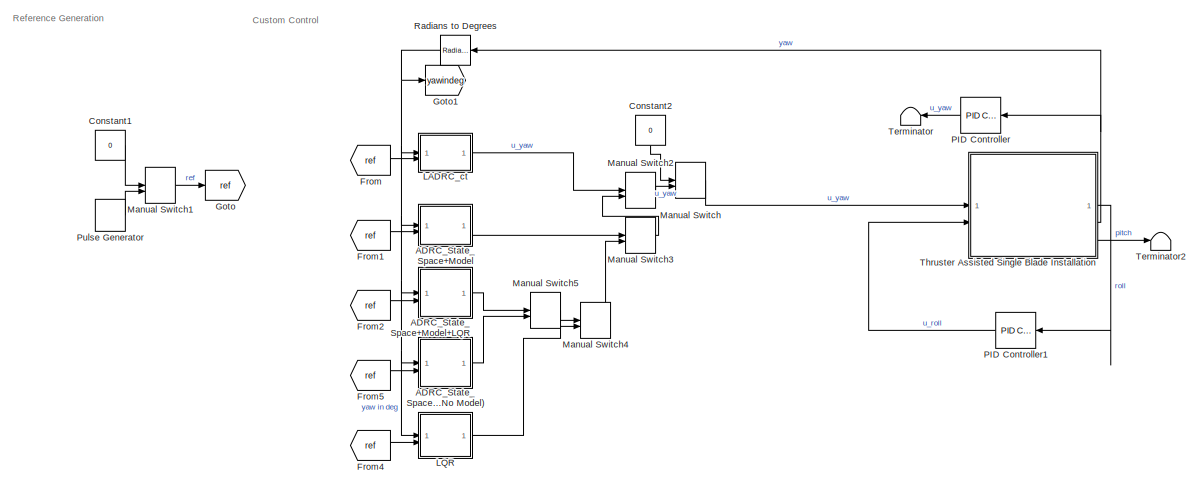
[diagram: root canvas - part 1/2, most of the canvas]
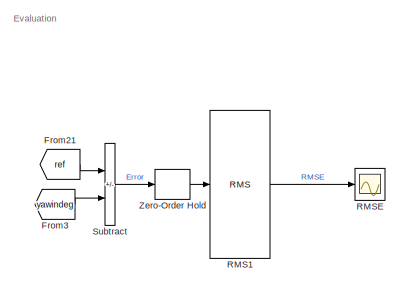
[diagram: root canvas - part 2/2, top right region]
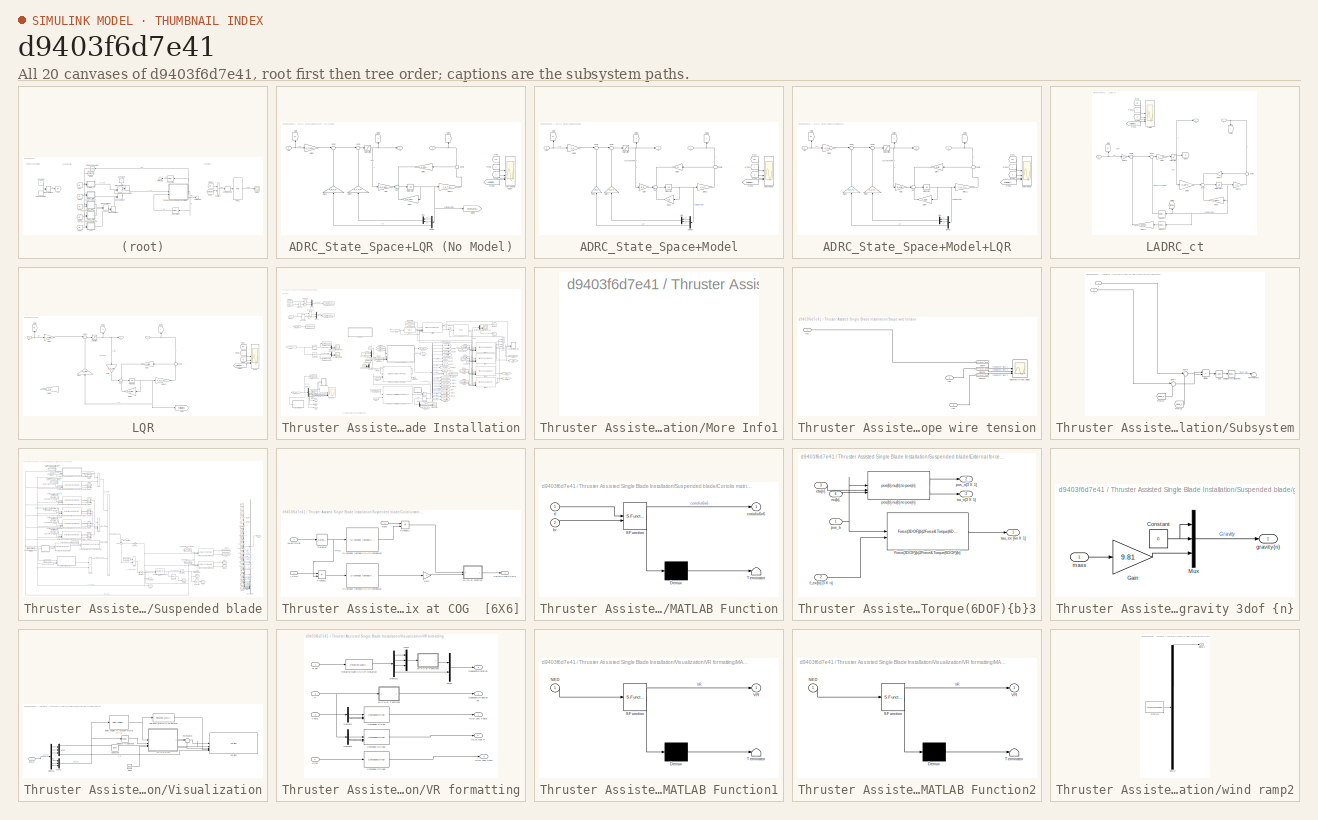
[diagram: thumbnail index - all 20 canvases of the model, root first then tree order]
MODEL slx_d9403f6d7e41
KIND model
CONFIG AbsTol = auto
CONFIG EnableMultiTasking = off
CONFIG FixedStep = auto
CONFIG MaxStep = auto
CONFIG MinStep = auto
CONFIG RelTol = 1e-3
CONFIG SampleTimeConstraint = Unconstrained
CONFIG SolverName = VariableStepAuto
CONFIG StartTime = 0.0
CONFIG StopTime = 60
BLOCK [SubSystem] ADRC_State_Space+LQR (No Model)
BLOCK [Demux] ADRC_State_Space+LQR (No Model)/Demux
  NameLocation = top
  Outputs = N+1
BLOCK [From] ADRC_State_Space+LQR (No Model)/From
  GotoTag = ref
BLOCK [From] ADRC_State_Space+LQR (No Model)/From1
  GotoTag = y
BLOCK [From] ADRC_State_Space+LQR (No Model)/From2
  GotoTag = u
BLOCK [From] ADRC_State_Space+LQR (No Model)/From3
  GotoTag = estimatedstates
BLOCK [Gain] ADRC_State_Space+LQR (No Model)/Gain
  Gain = b_o_nmlqr
BLOCK [Gain] ADRC_State_Space+LQR (No Model)/Gain1
  Gain = k_o_nmlqr
  NameLocation = top
BLOCK [Gain] ADRC_State_Space+LQR (No Model)/Gain11
  Gain = c_o_T_nmlqr
  Multiplication = Matrix(K*u)
BLOCK [Gain] ADRC_State_Space+LQR (No Model)/Gain2
  Gain = k_d_T_nmlqr
  NameLocation = right
BLOCK [Gain] ADRC_State_Space+LQR (No Model)/Gain3
  Gain = A_o_nmlqr
  Multiplication = Matrix(K*u)
  NameLocation = top
BLOCK [Gain] ADRC_State_Space+LQR (No Model)/Gain4
  Gain = k_c_T_nmlqr
  Multiplication = Matrix(K*u)
  NameLocation = right
BLOCK [Gain] ADRC_State_Space+LQR (No Model)/Gain5
  Gain = k_s_nmlqr
BLOCK [Goto] ADRC_State_Space+LQR (No Model)/Goto
  GotoTag = ref
  NameLocation = right
BLOCK [Goto] ADRC_State_Space+LQR (No Model)/Goto1
  GotoTag = y
  NameLocation = right
BLOCK [Goto] ADRC_State_Space+LQR (No Model)/Goto2
  GotoTag = u
  NameLocation = right
BLOCK [Goto] ADRC_State_Space+LQR (No Model)/Goto3
  GotoTag = estimatedstates
BLOCK [Integrator] ADRC_State_Space+LQR (No Model)/Integrator
BLOCK [Scope] ADRC_State_Space+LQR (No Model)/LQR-ADRC No Model
  Floating = off
  NumInputPorts = 4
  ScopeSpecificationString = Simulink.scopes.TimeScopeBlockCfg('CurrentConfiguration', extmgr.ConfigurationSet(extmgr.Configuration('Core','General UI',true),extmgr.Configuration('Core','Source UI',true),extmgr.Configuration('Sources','WiredSimulink',true),extmgr.Configuration('Visuals','Time Domain',true,'SerializedDisplays',{struct('MinYLimReal','-1125.00000','MaxYLimReal','1125.00000','YLabelReal','','MinYLimMag','  0.0000...<+1775ch>
BLOCK [Mux] ADRC_State_Space+LQR (No Model)/Mux
  DisplayOption = bar
  Inputs = 2
  NameLocation = top
BLOCK [Saturate] ADRC_State_Space+LQR (No Model)/Saturation
  LowerLimit = -LADRC_max_effort
  UpperLimit = LADRC_max_effort
BLOCK [Sum] ADRC_State_Space+LQR (No Model)/Sum
  Inputs = +++
BLOCK [Sum] ADRC_State_Space+LQR (No Model)/Sum1
  Inputs = |+-
BLOCK [Sum] ADRC_State_Space+LQR (No Model)/Sum2
  Inputs = |+-
BLOCK [Sum] ADRC_State_Space+LQR (No Model)/Sum6
  Inputs = +|-
  NameLocation = top
BLOCK [Inport] ADRC_State_Space+LQR (No Model)/ref
  Port = 2
BLOCK [Outport] ADRC_State_Space+LQR (No Model)/u
BLOCK [Inport] ADRC_State_Space+LQR (No Model)/y
BLOCK [SubSystem] ADRC_State_Space+Model
BLOCK [SubSystem] ADRC_State_Space+Model+LQR
BLOCK [Scope] ADRC_State_Space+Model+LQR/ADRC+Model
  Floating = off
  NumInputPorts = 4
  ScopeSpecificationString = Simulink.scopes.TimeScopeBlockCfg('CurrentConfiguration', extmgr.ConfigurationSet(extmgr.Configuration('Core','General UI',true),extmgr.Configuration('Core','Source UI',true),extmgr.Configuration('Sources','WiredSimulink',true),extmgr.Configuration('Visuals','Time Domain',true,'SerializedDisplays',{struct('MinYLimReal','-630.00315','MaxYLimReal','70.00194','YLabelReal','','MinYLimMag',' 0.00000','...<+1698ch>
BLOCK [Demux] ADRC_State_Space+Model+LQR/Demux
  NameLocation = top
  Outputs = N+1
BLOCK [From] ADRC_State_Space+Model+LQR/From
  GotoTag = ref
BLOCK [From] ADRC_State_Space+Model+LQR/From1
  GotoTag = y
BLOCK [From] ADRC_State_Space+Model+LQR/From2
  GotoTag = u
BLOCK [From] ADRC_State_Space+Model+LQR/From3
  GotoTag = estimatedstates
BLOCK [Gain] ADRC_State_Space+Model+LQR/Gain
  Gain = b_o_lqr
BLOCK [Gain] ADRC_State_Space+Model+LQR/Gain1
  Gain = k_o_lqr
  NameLocation = top
BLOCK [Gain] ADRC_State_Space+Model+LQR/Gain11
  Gain = c_o_T_lqr
  Multiplication = Matrix(K*u)
BLOCK [Gain] ADRC_State_Space+Model+LQR/Gain2
  Gain = k_d_T_lqr
  NameLocation = right
BLOCK [Gain] ADRC_State_Space+Model+LQR/Gain3
  Gain = A_o_lqr
  Multiplication = Matrix(K*u)
  NameLocation = top
BLOCK [Gain] ADRC_State_Space+Model+LQR/Gain4
  Gain = k_c_T_lqr
  Multiplication = Matrix(K*u)
  NameLocation = right
BLOCK [Gain] ADRC_State_Space+Model+LQR/Gain5
  Gain = k_s_lqr
BLOCK [Goto] ADRC_State_Space+Model+LQR/Goto
  GotoTag = ref
  NameLocation = right
BLOCK [Goto] ADRC_State_Space+Model+LQR/Goto1
  GotoTag = y
  NameLocation = right
BLOCK [Goto] ADRC_State_Space+Model+LQR/Goto2
  GotoTag = u
  NameLocation = right
BLOCK [Integrator] ADRC_State_Space+Model+LQR/Integrator
BLOCK [Mux] ADRC_State_Space+Model+LQR/Mux
  DisplayOption = bar
  Inputs = 2
  NameLocation = top
BLOCK [Saturate] ADRC_State_Space+Model+LQR/Saturation
  LowerLimit = -LADRC_max_effort
  UpperLimit = LADRC_max_effort
BLOCK [Sum] ADRC_State_Space+Model+LQR/Sum
  Inputs = +++
BLOCK [Sum] ADRC_State_Space+Model+LQR/Sum1
  Inputs = |+-
BLOCK [Sum] ADRC_State_Space+Model+LQR/Sum2
  Inputs = |+-
BLOCK [Sum] ADRC_State_Space+Model+LQR/Sum6
  Inputs = +|-
  NameLocation = top
BLOCK [Inport] ADRC_State_Space+Model+LQR/ref
  Port = 2
BLOCK [Outport] ADRC_State_Space+Model+LQR/u
BLOCK [Inport] ADRC_State_Space+Model+LQR/y
BLOCK [Scope] ADRC_State_Space+Model/ADRC+Model
  Floating = off
  NumInputPorts = 4
  ScopeSpecificationString = Simulink.scopes.TimeScopeBlockCfg('CurrentConfiguration', extmgr.ConfigurationSet(extmgr.Configuration('Core','General UI',true),extmgr.Configuration('Core','Source UI',true),extmgr.Configuration('Sources','WiredSimulink',true),extmgr.Configuration('Visuals','Time Domain',true,'SerializedDisplays',{struct('MinYLimReal','-866.13196','MaxYLimReal','295.18761','YLabelReal','','MinYLimMag',' 0.00000',...<+1694ch>
BLOCK [Demux] ADRC_State_Space+Model/Demux
  NameLocation = top
  Outputs = N+1
BLOCK [From] ADRC_State_Space+Model/From
  GotoTag = ref
BLOCK [From] ADRC_State_Space+Model/From1
  GotoTag = y
BLOCK [From] ADRC_State_Space+Model/From2
  GotoTag = u
BLOCK [From] ADRC_State_Space+Model/From3
  GotoTag = estimatedstates
BLOCK [Gain] ADRC_State_Space+Model/Gain
  Gain = b_o
BLOCK [Gain] ADRC_State_Space+Model/Gain1
  Gain = k_o
  NameLocation = top
BLOCK [Gain] ADRC_State_Space+Model/Gain11
  Gain = c_o_T
  Multiplication = Matrix(K*u)
BLOCK [Gain] ADRC_State_Space+Model/Gain2
  Gain = k_d_T
  NameLocation = right
BLOCK [Gain] ADRC_State_Space+Model/Gain3
  Gain = A_o
  Multiplication = Matrix(K*u)
  NameLocation = top
BLOCK [Gain] ADRC_State_Space+Model/Gain4
  Gain = k_c_T
  Multiplication = Matrix(K*u)
  NameLocation = right
BLOCK [Gain] ADRC_State_Space+Model/Gain5
  Gain = k_s
BLOCK [Goto] ADRC_State_Space+Model/Goto
  GotoTag = ref
  NameLocation = right
BLOCK [Goto] ADRC_State_Space+Model/Goto1
  GotoTag = y
  NameLocation = right
BLOCK [Goto] ADRC_State_Space+Model/Goto2
  GotoTag = u
  NameLocation = right
BLOCK [Integrator] ADRC_State_Space+Model/Integrator
BLOCK [Mux] ADRC_State_Space+Model/Mux
  DisplayOption = bar
  Inputs = 2
  NameLocation = top
BLOCK [Saturate] ADRC_State_Space+Model/Saturation
  LowerLimit = -LADRC_max_effort
  UpperLimit = LADRC_max_effort
BLOCK [Sum] ADRC_State_Space+Model/Sum
  Inputs = +++
BLOCK [Sum] ADRC_State_Space+Model/Sum1
  Inputs = |+-
BLOCK [Sum] ADRC_State_Space+Model/Sum2
  Inputs = |+-
BLOCK [Sum] ADRC_State_Space+Model/Sum6
  Inputs = +|-
  NameLocation = top
BLOCK [Inport] ADRC_State_Space+Model/ref
  Port = 2
BLOCK [Outport] ADRC_State_Space+Model/u
BLOCK [Inport] ADRC_State_Space+Model/y
BLOCK [Constant] Constant1
  Value = 0
BLOCK [Constant] Constant2
  NameLocation = left
  Value = 0
BLOCK [From] From
  GotoTag = ref
BLOCK [From] From1
  GotoTag = ref
BLOCK [From] From2
  GotoTag = ref
BLOCK [From] From21
  GotoTag = ref
BLOCK [From] From3
  GotoTag = yawindeg
BLOCK [From] From4
  GotoTag = ref
BLOCK [From] From5
  GotoTag = ref
BLOCK [Goto] Goto
  GotoTag = ref
BLOCK [Goto] Goto1
  GotoTag = yawindeg
BLOCK [SubSystem] LADRC_ct
BLOCK [From] LADRC_ct/From
  GotoTag = ref
BLOCK [From] LADRC_ct/From1
  GotoTag = y
BLOCK [From] LADRC_ct/From2
  GotoTag = u
BLOCK [From] LADRC_ct/From3
  GotoTag = estimatedstates
BLOCK [Gain] LADRC_ct/Gain10
  Gain = l
  NameLocation = top
BLOCK [Gain] LADRC_ct/Gain11
  Gain = c_t
  Multiplication = Matrix(K*u)
BLOCK [Gain] LADRC_ct/Gain12
  Gain = transpose(k)
  Multiplication = Matrix(K*u)
  NameLocation = top
BLOCK [Gain] LADRC_ct/Gain13
  Gain = k(1)
BLOCK [Gain] LADRC_ct/Gain7
  Gain = 1 / b0
BLOCK [Gain] LADRC_ct/Gain8
  Gain = b_adrcl
  Multiplication = Matrix(K*u)
BLOCK [Gain] LADRC_ct/Gain9
  Gain = A_adrcl
  Multiplication = Matrix(K*u)
  NameLocation = top
BLOCK [Goto] LADRC_ct/Goto
  GotoTag = ref
  NameLocation = right
BLOCK [Goto] LADRC_ct/Goto1
  GotoTag = y
  NameLocation = left
BLOCK [Goto] LADRC_ct/Goto2
  GotoTag = u
BLOCK [Goto] LADRC_ct/Goto3
  GotoTag = estimatedstates
  NameLocation = right
BLOCK [Integrator] LADRC_ct/Integrator1
BLOCK [Scope] LADRC_ct/LADRC
  Floating = off
  NumInputPorts = 4
  ScopeSpecificationString = Simulink.scopes.TimeScopeBlockCfg('CurrentConfiguration', extmgr.ConfigurationSet(extmgr.Configuration('Core','General UI',true),extmgr.Configuration('Core','Source UI',true),extmgr.Configuration('Sources','WiredSimulink',true),extmgr.Configuration('Visuals','Time Domain',true,'SerializedDisplays',{struct('MinYLimReal','-889.53882','MaxYLimReal','505.8494','YLabelReal','','MinYLimMag',' 0.00000','...<+1739ch>
BLOCK [Saturate] LADRC_ct/Saturation
  LowerLimit = -LADRC_max_effort
  UpperLimit = LADRC_max_effort
BLOCK [Selector] LADRC_ct/Selector2
  IndexOptions = Index vector (dialog)
  Indices = [N+1]
  InputPortWidth = N+1
  NameLocation = top
  OutputSizes = 1
BLOCK [Selector] LADRC_ct/Selector3
  IndexOptions = Index vector (dialog)
  Indices = [1:N]
  InputPortWidth = N+1
  NameLocation = top
  OutputSizes = 1
BLOCK [Sum] LADRC_ct/Sum5
  Inputs = +++
BLOCK [Sum] LADRC_ct/Sum6
  Inputs = +|-
  NameLocation = top
BLOCK [Sum] LADRC_ct/Sum7
  Inputs = |+-
BLOCK [Sum] LADRC_ct/Sum8
  Inputs = |+-
BLOCK [Inport] LADRC_ct/ref
  Port = 2
BLOCK [Outport] LADRC_ct/u
BLOCK [Inport] LADRC_ct/y
BLOCK [SubSystem] LQR
BLOCK [Scope] LQR/DLQR
  Floating = off
  NumInputPorts = 4
  ScopeSpecificationString = Simulink.scopes.TimeScopeBlockCfg('CurrentConfiguration', extmgr.ConfigurationSet(extmgr.Configuration('Core','General UI',true),extmgr.Configuration('Core','Source UI',true),extmgr.Configuration('Sources','WiredSimulink',true),extmgr.Configuration('Visuals','Time Domain',true,'SerializedDisplays',{struct('MinYLimReal','-1.30403','MaxYLimReal','2.24551','YLabelReal','','MinYLimMag','0.00000','MaxY...<+1696ch>
BLOCK [From] LQR/From
  GotoTag = ref
BLOCK [From] LQR/From1
  GotoTag = y
BLOCK [From] LQR/From2
  GotoTag = u
BLOCK [From] LQR/From3
  GotoTag = estimatedstates
BLOCK [Gain] LQR/Gain
  Gain = b_o_plqr
  NameLocation = left
BLOCK [Gain] LQR/Gain1
  Gain = k_o_plqr
  NameLocation = top
BLOCK [Gain] LQR/Gain11
  Gain = c_o_T_plqr
  Multiplication = Matrix(K*u)
BLOCK [Gain] LQR/Gain3
  Gain = A_o_plqr
  Multiplication = Matrix(K*u)
  NameLocation = top
BLOCK [Gain] LQR/Gain4
  Gain = k_plqr
  Multiplication = Matrix(K*u)
  NameLocation = right
BLOCK [Gain] LQR/Gain5
  Gain = k_s_plqr
BLOCK [Gain] LQR/Gain9
  Commented = on
  Gain = [k_T_d 1]
  Multiplication = Matrix(K*u)
  NameLocation = top
BLOCK [Goto] LQR/Goto
  GotoTag = ref
  NameLocation = right
BLOCK [Goto] LQR/Goto1
  GotoTag = y
  NameLocation = right
BLOCK [Goto] LQR/Goto2
  GotoTag = u
  NameLocation = right
BLOCK [Goto] LQR/Goto3
  GotoTag = estimatedstates
BLOCK [Integrator] LQR/Integrator1
BLOCK [Saturate] LQR/Saturation
  LowerLimit = -LADRC_max_effort
  UpperLimit = LADRC_max_effort
BLOCK [Sum] LQR/Sum
  Inputs = +++
BLOCK [Sum] LQR/Sum1
  Inputs = |+-
BLOCK [Sum] LQR/Sum6
  Inputs = +|-
  NameLocation = top
BLOCK [Inport] LQR/ref
  Port = 2
BLOCK [Outport] LQR/u
BLOCK [Inport] LQR/y
BLOCK [ManualSwitch] Manual Switch
  CurrentSetting = 0
BLOCK [ManualSwitch] Manual Switch1
BLOCK [ManualSwitch] Manual Switch2
  CurrentSetting = 0
BLOCK [ManualSwitch] Manual Switch3
  CurrentSetting = 0
BLOCK [ManualSwitch] Manual Switch4
  CurrentSetting = 0
BLOCK [ManualSwitch] Manual Switch5
BLOCK [Reference] PID Controller  REF=slpidlib/PID Controller
  NameLocation = top
  SourceBlock = slpidlib/PID Controller
  SourceType = PID 1dof
BLOCK [Reference] PID Controller1  REF=slpidlib/PID Controller
  NameLocation = top
  SourceBlock = slpidlib/PID Controller
  SourceType = PID 1dof
BLOCK [DiscretePulseGenerator] Pulse Generator
  Amplitude = 90
  Period = 40
  PulseType = Time based
  PulseWidth = 50
BLOCK [Reference] RMS1  REF=dspstat3/RMS
  SourceBlock = dspstat3/RMS
  SourceType = RMS
  UserDataPersistent = on
BLOCK [Scope] RMSE
  Floating = off
  NumInputPorts = 1
  ScopeSpecificationString = Simulink.scopes.TimeScopeBlockCfg('CurrentConfiguration', extmgr.ConfigurationSet(extmgr.Configuration('Core','General UI',true),extmgr.Configuration('Core','Source UI',true),extmgr.Configuration('Sources','WiredSimulink',true,'DataLoggingVariableName','ScopeData1'),extmgr.Configuration('Visuals','Time Domain',true,'SerializedDisplays',{struct('MinYLimReal','-0.00903','MaxYLimReal','0.08123','YLab...<+1452ch>
BLOCK [Reference] Radians to Degrees  REF=simulink_extras/Transformations/Radians
to Degrees
  NameLocation = top
  SourceBlock = simulink_extras/Transformations/Radians\nto Degrees
  SourceType = RadiansToDegrees
BLOCK [Sum] Subtract
  IconShape = rectangular
  Inputs = +-
BLOCK [Terminator] Terminator
  NameLocation = top
BLOCK [Terminator] Terminator2
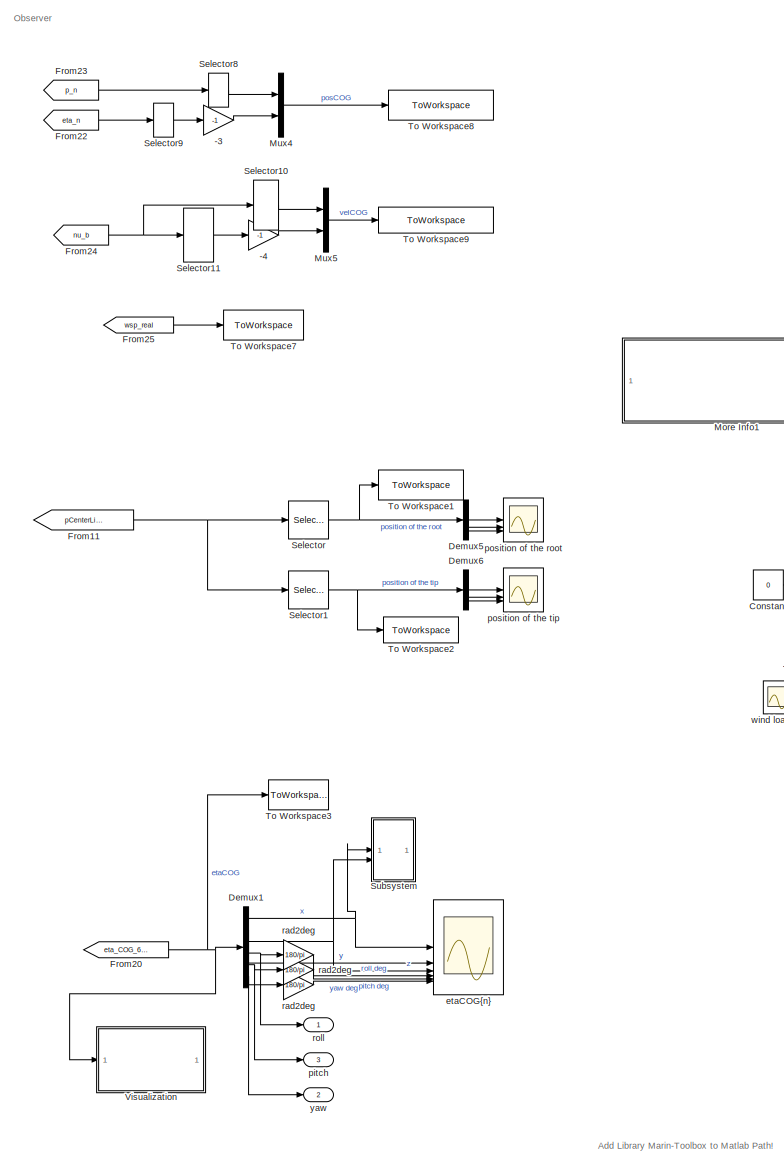
[diagram: Thruster Assisted Single Blade Installation - part 1/3, left side, full height]
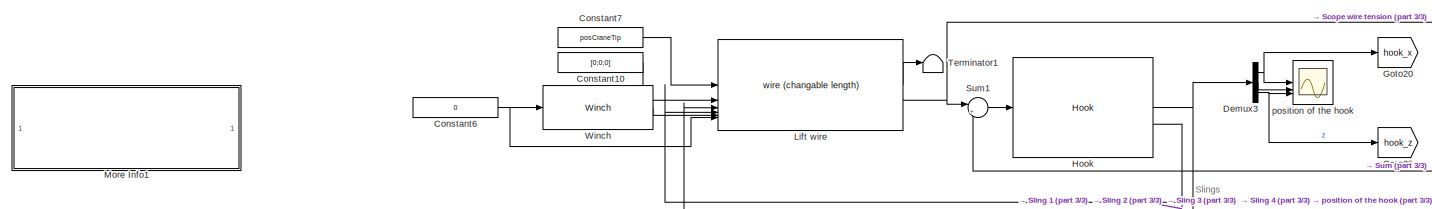
[diagram: Thruster Assisted Single Blade Installation - part 2/3, top center region]
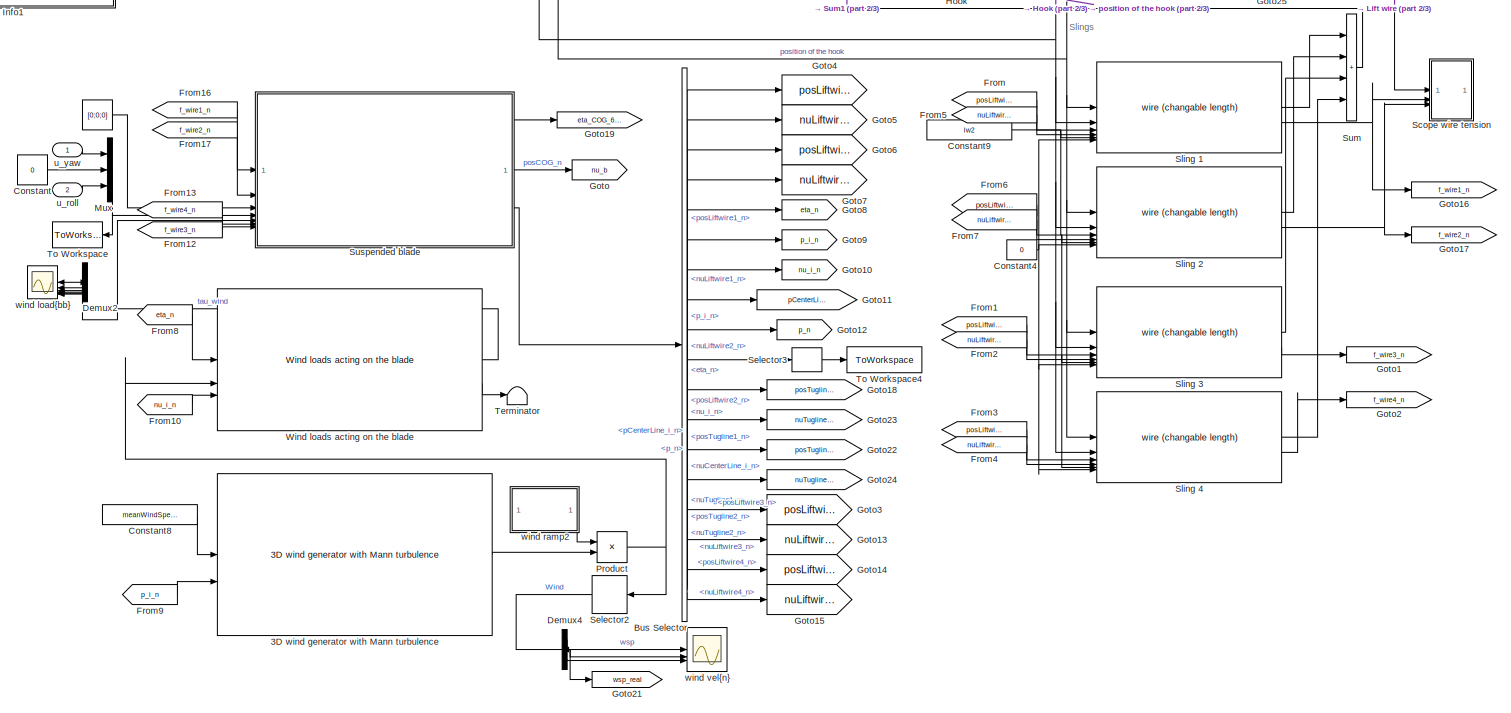
[diagram: Thruster Assisted Single Blade Installation - part 3/3, central region]
BLOCK [SubSystem] Thruster Assisted Single Blade Installation
  AncestorBlock = MarIn_blade/[Example] Single blade installation
BLOCK [Constant] Thruster Assisted Single Blade Installation/ 
  Value = [0;0;0]
BLOCK [Gain] Thruster Assisted Single Blade Installation/ rad2deg
  Gain = 180/pi
BLOCK [Gain] Thruster Assisted Single Blade Installation/-3
  Gain = -1
BLOCK [Gain] Thruster Assisted Single Blade Installation/-4
  Gain = -1
BLOCK [Reference] Thruster Assisted Single Blade Installation/3D wind generator with Mann turbulence  REF=MarIn_blade/Environment/3D wind generator with Mann turbulence
  SourceBlock = MarIn_blade/Environment/3D wind generator with Mann turbulence
  SourceProductName = MarIn (Blade)
  SourceType = 3D wind generator with Mann turbulence
BLOCK [BusSelector] Thruster Assisted Single Blade Installation/Bus Selector
  OutputSignals = posLiftwire1_n,nuLiftwire1_n,posLiftwire2_n,nuLiftwire2_n,eta_n,p_i_n,nu_i_n,pCenterLine_i_n,p_n,nuCenterLine_i_n,posTugline1_n,nuTugline1_n,posTugline2_n,nuTugline2_n,posLiftwire3_n,nuLiftwire3_n,posLiftwire4_n,nuLiftwire4_n
BLOCK [Constant] Thruster Assisted Single Blade Installation/Constant
  Value = 0
BLOCK [Constant] Thruster Assisted Single Blade Installation/Constant10
  Value = [0;0;0]
BLOCK [Constant] Thruster Assisted Single Blade Installation/Constant4
  Value = 0
BLOCK [Constant] Thruster Assisted Single Blade Installation/Constant6
  Value = 0
BLOCK [Constant] Thruster Assisted Single Blade Installation/Constant7
  Value = posCraneTip
BLOCK [Constant] Thruster Assisted Single Blade Installation/Constant8
  Value = meanWindSpeed
BLOCK [Constant] Thruster Assisted Single Blade Installation/Constant9
  Value = lw2
BLOCK [Demux] Thruster Assisted Single Blade Installation/Demux1
  Outputs = 6
BLOCK [Demux] Thruster Assisted Single Blade Installation/Demux2
  NameLocation = top
  Outputs = 6
BLOCK [Demux] Thruster Assisted Single Blade Installation/Demux3
  Outputs = 3
BLOCK [Demux] Thruster Assisted Single Blade Installation/Demux4
  Outputs = 3
BLOCK [Demux] Thruster Assisted Single Blade Installation/Demux5
  Outputs = 3
BLOCK [Demux] Thruster Assisted Single Blade Installation/Demux6
  Outputs = 3
BLOCK [From] Thruster Assisted Single Blade Installation/From
  GotoTag = posLiftwire1_n
BLOCK [From] Thruster Assisted Single Blade Installation/From1
  GotoTag = posLiftwire3_n
BLOCK [From] Thruster Assisted Single Blade Installation/From10
  GotoTag = nu_i_n
BLOCK [From] Thruster Assisted Single Blade Installation/From11
  GotoTag = pCenterLine_i_n
BLOCK [From] Thruster Assisted Single Blade Installation/From12
  GotoTag = f_wire3_n
BLOCK [From] Thruster Assisted Single Blade Installation/From13
  GotoTag = f_wire4_n
BLOCK [From] Thruster Assisted Single Blade Installation/From16
  GotoTag = f_wire1_n
BLOCK [From] Thruster Assisted Single Blade Installation/From17
  GotoTag = f_wire2_n
BLOCK [From] Thruster Assisted Single Blade Installation/From2
  GotoTag = nuLiftwire3_n
BLOCK [From] Thruster Assisted Single Blade Installation/From20
  GotoTag = eta_COG_6dof
BLOCK [From] Thruster Assisted Single Blade Installation/From22
  GotoTag = eta_n
BLOCK [From] Thruster Assisted Single Blade Installation/From23
  GotoTag = p_n
BLOCK [From] Thruster Assisted Single Blade Installation/From24
  GotoTag = nu_b
BLOCK [From] Thruster Assisted Single Blade Installation/From25
  GotoTag = wsp_real
BLOCK [From] Thruster Assisted Single Blade Installation/From3
  GotoTag = posLiftwire4_n
BLOCK [From] Thruster Assisted Single Blade Installation/From4
  GotoTag = nuLiftwire4_n
BLOCK [From] Thruster Assisted Single Blade Installation/From5
  GotoTag = nuLiftwire1_n
BLOCK [From] Thruster Assisted Single Blade Installation/From6
  GotoTag = posLiftwire2_n
BLOCK [From] Thruster Assisted Single Blade Installation/From7
  GotoTag = nuLiftwire2_n
BLOCK [From] Thruster Assisted Single Blade Installation/From8
  GotoTag = eta_n
BLOCK [From] Thruster Assisted Single Blade Installation/From9
  GotoTag = p_i_n
BLOCK [Goto] Thruster Assisted Single Blade Installation/Goto
  GotoTag = nu_b
BLOCK [Goto] Thruster Assisted Single Blade Installation/Goto1
  GotoTag = f_wire3_n
BLOCK [Goto] Thruster Assisted Single Blade Installation/Goto10
  GotoTag = nu_i_n
BLOCK [Goto] Thruster Assisted Single Blade Installation/Goto11
  GotoTag = pCenterLine_i_n
BLOCK [Goto] Thruster Assisted Single Blade Installation/Goto12
  GotoTag = p_n
BLOCK [Goto] Thruster Assisted Single Blade Installation/Goto13
  GotoTag = nuLiftwire3_n
BLOCK [Goto] Thruster Assisted Single Blade Installation/Goto14
  GotoTag = posLiftwire4_n
BLOCK [Goto] Thruster Assisted Single Blade Installation/Goto15
  GotoTag = nuLiftwire4_n
BLOCK [Goto] Thruster Assisted Single Blade Installation/Goto16
  GotoTag = f_wire1_n
BLOCK [Goto] Thruster Assisted Single Blade Installation/Goto17
  GotoTag = f_wire2_n
BLOCK [Goto] Thruster Assisted Single Blade Installation/Goto18
  GotoTag = posTugline1_n
BLOCK [Goto] Thruster Assisted Single Blade Installation/Goto19
  GotoTag = eta_COG_6dof
BLOCK [Goto] Thruster Assisted Single Blade Installation/Goto2
  GotoTag = f_wire4_n
BLOCK [Goto] Thruster Assisted Single Blade Installation/Goto20
  GotoTag = hook_x
BLOCK [Goto] Thruster Assisted Single Blade Installation/Goto21
  GotoTag = wsp_real
BLOCK [Goto] Thruster Assisted Single Blade Installation/Goto22
  GotoTag = posTugline2_n
BLOCK [Goto] Thruster Assisted Single Blade Installation/Goto23
  GotoTag = nuTugline1_n
BLOCK [Goto] Thruster Assisted Single Blade Installation/Goto24
  GotoTag = nuTugline2_n
BLOCK [Goto] Thruster Assisted Single Blade Installation/Goto25
  GotoTag = hook_z
BLOCK [Goto] Thruster Assisted Single Blade Installation/Goto3
  GotoTag = posLiftwire3_n
BLOCK [Goto] Thruster Assisted Single Blade Installation/Goto4
  GotoTag = posLiftwire1_n
BLOCK [Goto] Thruster Assisted Single Blade Installation/Goto5
  GotoTag = nuLiftwire1_n
BLOCK [Goto] Thruster Assisted Single Blade Installation/Goto6
  GotoTag = posLiftwire2_n
BLOCK [Goto] Thruster Assisted Single Blade Installation/Goto7
  GotoTag = nuLiftwire2_n
BLOCK [Goto] Thruster Assisted Single Blade Installation/Goto8
  GotoTag = eta_n
BLOCK [Goto] Thruster Assisted Single Blade Installation/Goto9
  GotoTag = p_i_n
BLOCK [Reference] Thruster Assisted Single Blade Installation/Hook  REF=MarIn_blade/Lifting equipments
(winch, wire, hook)/Hook
  SourceBlock = MarIn_blade/Lifting equipments\n(winch, wire, hook)/Hook
  SourceProductName = MarIn (Blade)
  SourceType = Hook
BLOCK [Reference] Thruster Assisted Single Blade Installation/Lift wire  REF=MarIn_blade/Lifting equipments
(winch, wire, hook)/wire (changable length)
  SourceBlock = MarIn_blade/Lifting equipments\n(winch, wire, hook)/wire (changable length)
  SourceProductName = MarIn (Blade)
  SourceType = Wire
BLOCK [SubSystem] Thruster Assisted Single Blade Installation/More Info1
  OpenFcn = run init_example_single_blade_installation.m
BLOCK [Mux] Thruster Assisted Single Blade Installation/Mux
  DisplayOption = bar
  Inputs = 3
BLOCK [Mux] Thruster Assisted Single Blade Installation/Mux4
  DisplayOption = bar
  Inputs = 2
BLOCK [Mux] Thruster Assisted Single Blade Installation/Mux5
  DisplayOption = bar
  Inputs = 2
BLOCK [Product] Thruster Assisted Single Blade Installation/Product
BLOCK [SubSystem] Thruster Assisted Single Blade Installation/Scope wire tension
BLOCK [Inport] Thruster Assisted Single Blade Installation/Scope wire tension/In1
BLOCK [Inport] Thruster Assisted Single Blade Installation/Scope wire tension/In2
  Port = 2
BLOCK [Inport] Thruster Assisted Single Blade Installation/Scope wire tension/In3
  Port = 3
BLOCK [Scope] Thruster Assisted Single Blade Installation/Scope wire tension/Tension in the ropes
  Floating = off
  NumInputPorts = 3
  ScopeSpecificationString = Simulink.scopes.TimeScopeBlockCfg('CurrentConfiguration', extmgr.ConfigurationSet(extmgr.Configuration('Core','General UI',true),extmgr.Configuration('Core','Source UI',true),extmgr.Configuration('Sources','WiredSimulink',true,'DataLoggingVariableName','ScopeData2','DataLoggingLimitDataPoints',true,'DataLoggingSaveFormat','Array','DataLoggingDecimation','1','DataLoggingDecimateData',true),extmgr.C...<+1585ch>
BLOCK [Fcn] Thruster Assisted Single Blade Installation/Scope wire tension/norm
  Expr = sqrt(u(1)^2+u(2)^2+u(3)^2)
BLOCK [Fcn] Thruster Assisted Single Blade Installation/Scope wire tension/norm2
  Expr = sqrt(u(1)^2+u(2)^2+u(3)^2)
BLOCK [Fcn] Thruster Assisted Single Blade Installation/Scope wire tension/norm4
  Expr = sqrt(u(1)^2+u(2)^2+u(3)^2)
BLOCK [Selector] Thruster Assisted Single Blade Installation/Selector
  IndexOptions = Index vector (dialog),Index vector (dialog)
  Indices = [1 2 3],1
  InputPortWidth = 3
  NumberOfDimensions = 2
  OutputSizes = 1,1
BLOCK [Selector] Thruster Assisted Single Blade Installation/Selector1
  IndexOptions = Index vector (dialog),Index vector (dialog)
  Indices = [1 2 3],bladePar.n_i
  InputPortWidth = 3
  NumberOfDimensions = 2
  OutputSizes = 1,1
BLOCK [Selector] Thruster Assisted Single Blade Installation/Selector10
  IndexOptions = Index vector (dialog)
  Indices = [3,2]
  InputPortWidth = 6
  OutputSizes = 1
BLOCK [Selector] Thruster Assisted Single Blade Installation/Selector11
  IndexOptions = Index vector (dialog)
  Indices = 4
  InputPortWidth = 6
  OutputSizes = 1
BLOCK [Selector] Thruster Assisted Single Blade Installation/Selector2
  IndexOptions = Index vector (dialog),Index vector (dialog)
  Indices = [1 2 3],20
  InputPortWidth = 3
  NameLocation = top
  NumberOfDimensions = 2
  OutputSizes = 1,1
BLOCK [Selector] Thruster Assisted Single Blade Installation/Selector3
  IndexOptions = Index vector (dialog),Index vector (dialog)
  Indices = [1 2 3],1
  InputPortWidth = 3
  NumberOfDimensions = 2
  OutputSizes = 1,1
BLOCK [Selector] Thruster Assisted Single Blade Installation/Selector8
  IndexOptions = Index vector (dialog)
  Indices = [1 2]
  InputPortWidth = 3
  OutputSizes = 1
BLOCK [Selector] Thruster Assisted Single Blade Installation/Selector9
  IndexOptions = Index vector (dialog)
  Indices = 4
  InputPortWidth = 6
  OutputSizes = 1
BLOCK [Reference] Thruster Assisted Single Blade Installation/Sling 1  REF=MarIn_blade/Lifting equipments
(winch, wire, hook)/wire (changable length)
  NameLocation = top
  SourceBlock = MarIn_blade/Lifting equipments\n(winch, wire, hook)/wire (changable length)
  SourceProductName = MarIn (Blade)
  SourceType = Wire
BLOCK [Reference] Thruster Assisted Single Blade Installation/Sling 2  REF=MarIn_blade/Lifting equipments
(winch, wire, hook)/wire (changable length)
  SourceBlock = MarIn_blade/Lifting equipments\n(winch, wire, hook)/wire (changable length)
  SourceProductName = MarIn (Blade)
  SourceType = Wire
BLOCK [Reference] Thruster Assisted Single Blade Installation/Sling 3  REF=MarIn_blade/Lifting equipments
(winch, wire, hook)/wire (changable length)
  NameLocation = top
  SourceBlock = MarIn_blade/Lifting equipments\n(winch, wire, hook)/wire (changable length)
  SourceProductName = MarIn (Blade)
  SourceType = Wire
BLOCK [Reference] Thruster Assisted Single Blade Installation/Sling 4  REF=MarIn_blade/Lifting equipments
(winch, wire, hook)/wire (changable length)
  SourceBlock = MarIn_blade/Lifting equipments\n(winch, wire, hook)/wire (changable length)
  SourceProductName = MarIn (Blade)
  SourceType = Wire
BLOCK [SubSystem] Thruster Assisted Single Blade Installation/Subsystem
BLOCK [Trigonometry] Thruster Assisted Single Blade Installation/Subsystem/Cos
  Operator = atan
BLOCK [Product] Thruster Assisted Single Blade Installation/Subsystem/Divide
  Inputs = */
BLOCK [From] Thruster Assisted Single Blade Installation/Subsystem/From14
  GotoTag = hook_z
BLOCK [From] Thruster Assisted Single Blade Installation/Subsystem/From15
  GotoTag = hook_x
BLOCK [Reference] Thruster Assisted Single Blade Installation/Subsystem/Radians to Degrees  REF=simulink_extras/Transformations/Radians
to Degrees
  SourceBlock = simulink_extras/Transformations/Radians\nto Degrees
  SourceType = RadiansToDegrees
BLOCK [Sum] Thruster Assisted Single Blade Installation/Subsystem/Sum3
  Inputs = |+-
BLOCK [Sum] Thruster Assisted Single Blade Installation/Subsystem/Sum4
  Inputs = |+-
BLOCK [Terminator] Thruster Assisted Single Blade Installation/Subsystem/Terminator2
BLOCK [Inport] Thruster Assisted Single Blade Installation/Subsystem/x
BLOCK [Inport] Thruster Assisted Single Blade Installation/Subsystem/z
  Port = 2
BLOCK [Sum] Thruster Assisted Single Blade Installation/Sum
  IconShape = rectangular
  Inputs = ++++
BLOCK [Sum] Thruster Assisted Single Blade Installation/Sum1
  Inputs = |++
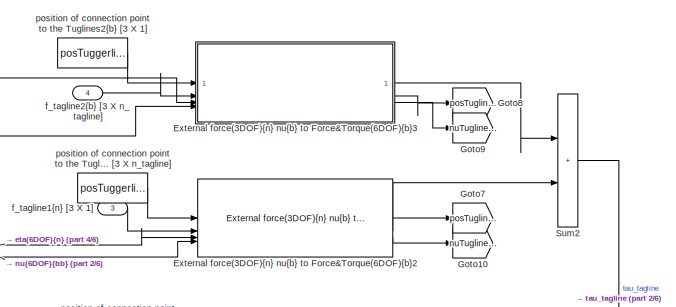
[diagram: Thruster Assisted Single Blade Installation/Suspended blade - part 1/6, top left region]
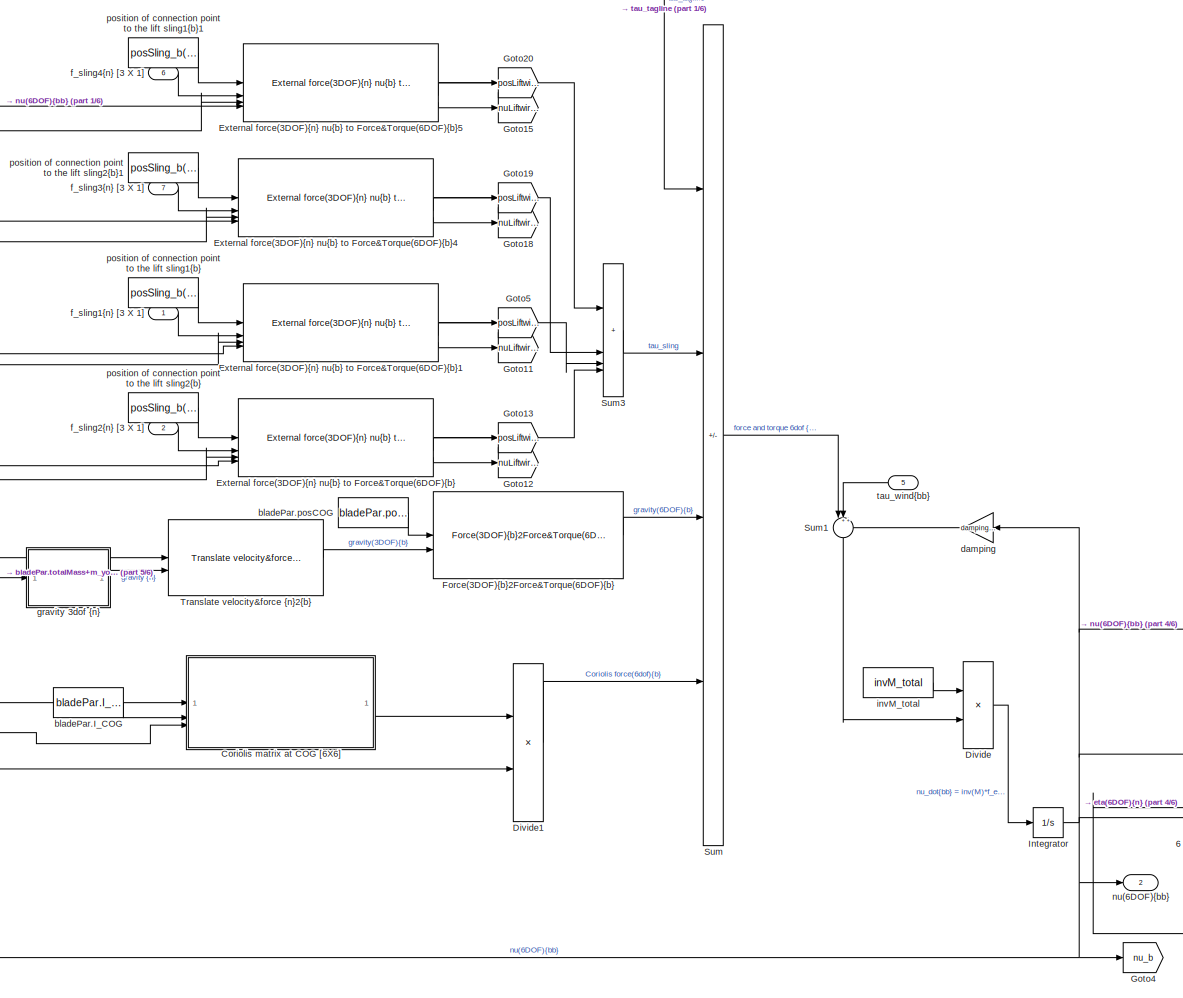
[diagram: Thruster Assisted Single Blade Installation/Suspended blade - part 2/6, middle left region]
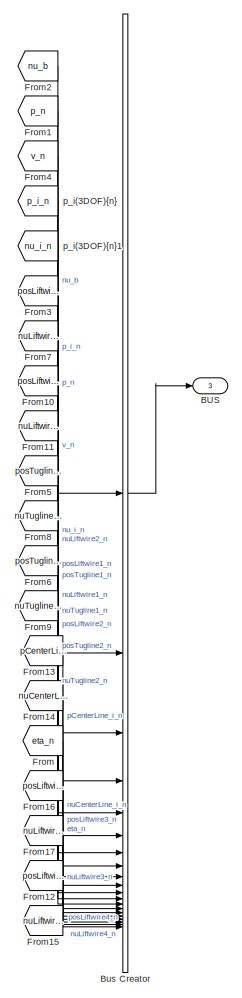
[diagram: Thruster Assisted Single Blade Installation/Suspended blade - part 3/6, middle right region]
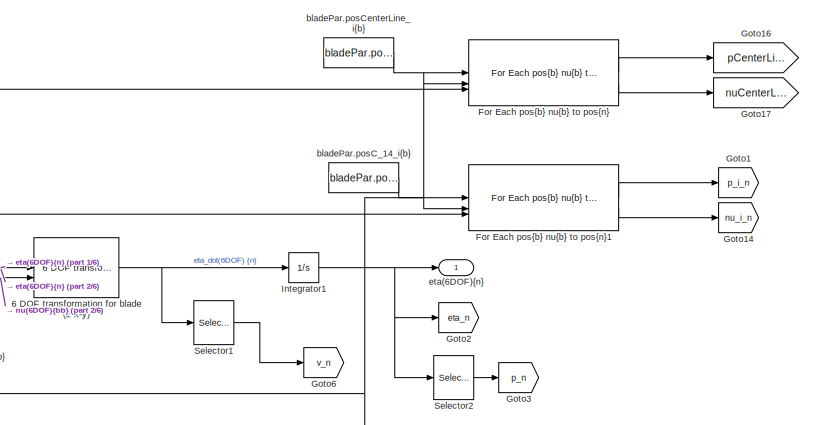
[diagram: Thruster Assisted Single Blade Installation/Suspended blade - part 4/6, bottom right region]
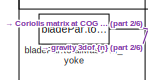
[diagram: Thruster Assisted Single Blade Installation/Suspended blade - part 5/6, middle left region]
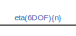
[diagram: Thruster Assisted Single Blade Installation/Suspended blade - part 6/6, bottom center region]
BLOCK [SubSystem] Thruster Assisted Single Blade Installation/Suspended blade
  AncestorBlock = MarIn_blade/Payload/Suspended blade
BLOCK [Reference] Thruster Assisted Single Blade Installation/Suspended blade/6 DOF transformation for blade (z-x-y)  REF=MarIn_blade/Basic functions/6 DOF transformation for blade
(z-x-y)
  SourceBlock = MarIn_blade/Basic functions/6 DOF transformation for blade\n(z-x-y)
  SourceProductName = MarIn(Blade)
  SourceType = 6 DOF transformation for blade (z-x-y)
BLOCK [Outport] Thruster Assisted Single Blade Installation/Suspended blade/BUS
  Port = 3
BLOCK [BusCreator] Thruster Assisted Single Blade Installation/Suspended blade/Bus Creator
  DisplayOption = bar
  InheritFromInputs = on
  Inputs = 20
BLOCK [SubSystem] Thruster Assisted Single Blade Installation/Suspended blade/Coriolis matrix at COG  [6X6]
  AncestorBlock = MarIn_blade/Basic functions/Coriolis matrix at COG  [6X6]
BLOCK [Outport] Thruster Assisted Single Blade Installation/Suspended blade/Coriolis matrix at COG  [6X6]/Coriolis matrix 6X6
BLOCK [Gain] Thruster Assisted Single Blade Installation/Suspended blade/Coriolis matrix at COG  [6X6]/Gain
  Gain = -1
BLOCK [Inport] Thruster Assisted Single Blade Installation/Suspended blade/Coriolis matrix at COG  [6X6]/I_COG
  Port = 2
BLOCK [SubSystem] Thruster Assisted Single Blade Installation/Suspended blade/Coriolis matrix at COG  [6X6]/MATLAB Function
  ErrorFcn = Stateflow.Translate.translate
  PermitHierarchicalResolution = ExplicitOnly
  SFBlockType = MATLAB Function
  TreatAsAtomicUnit = on
BLOCK [Demux] Thruster Assisted Single Blade Installation/Suspended blade/Coriolis matrix at COG  [6X6]/MATLAB Function/ Demux 
  Outputs = 1
BLOCK [S-Function] Thruster Assisted Single Blade Installation/Suspended blade/Coriolis matrix at COG  [6X6]/MATLAB Function/ SFunction 
  EnableBusSupport = on
  FunctionName = sf_sfun
  PortCounts = [2 2]
  SFcnIsStateOwnerBlock = off
  SFunctionDeploymentMode = off
  Tag = Stateflow S-Function 2
BLOCK [Terminator] Thruster Assisted Single Blade Installation/Suspended blade/Coriolis matrix at COG  [6X6]/MATLAB Function/ Terminator 
BLOCK [Inport] Thruster Assisted Single Blade Installation/Suspended blade/Coriolis matrix at COG  [6X6]/MATLAB Function/br
  Port = 2
BLOCK [Outport] Thruster Assisted Single Blade Installation/Suspended blade/Coriolis matrix at COG  [6X6]/MATLAB Function/coriolis6x6
BLOCK [Inport] Thruster Assisted Single Blade Installation/Suspended blade/Coriolis matrix at COG  [6X6]/MATLAB Function/tl
BLOCK [Product] Thruster Assisted Single Blade Installation/Suspended blade/Coriolis matrix at COG  [6X6]/Product1
  Multiplication = Matrix(*)
BLOCK [Product] Thruster Assisted Single Blade Installation/Suspended blade/Coriolis matrix at COG  [6X6]/Product2
BLOCK [Reference] Thruster Assisted Single Blade Installation/Suspended blade/Coriolis matrix at COG  [6X6]/S(lambda) lambda x a = S(lambda)a1  REF=MarIn_blade/Basic functions/S(lambda)
lambda x a = S(lambda)a
  SourceBlock = MarIn_blade/Basic functions/S(lambda)\nlambda x a = S(lambda)a
  SourceProductName = MarIn(Blade)
  SourceType = Smatrix
BLOCK [Reference] Thruster Assisted Single Blade Installation/Suspended blade/Coriolis matrix at COG  [6X6]/S(lambda) lambda x a = S(lambda)a2  REF=MarIn_blade/Basic functions/S(lambda)
lambda x a = S(lambda)a
  SourceBlock = MarIn_blade/Basic functions/S(lambda)\nlambda x a = S(lambda)a
  SourceProductName = MarIn(Blade)
  SourceType = Smatrix
BLOCK [Selector] Thruster Assisted Single Blade Installation/Suspended blade/Coriolis matrix at COG  [6X6]/Selector
  IndexOptions = Index vector (dialog)
  Indices = [1 2 3]
  InputPortWidth = 6
  OutputSizes = 1
BLOCK [Inport] Thruster Assisted Single Blade Installation/Suspended blade/Coriolis matrix at COG  [6X6]/mass
BLOCK [Inport] Thruster Assisted Single Blade Installation/Suspended blade/Coriolis matrix at COG  [6X6]/nu(6DOF){b}
  Port = 3
BLOCK [Product] Thruster Assisted Single Blade Installation/Suspended blade/Divide
  Inputs = **
  Multiplication = Matrix(*)
BLOCK [Product] Thruster Assisted Single Blade Installation/Suspended blade/Divide1
  Inputs = **
  Multiplication = Matrix(*)
BLOCK [Reference] Thruster Assisted Single Blade Installation/Suspended blade/External force(3DOF){n} nu{b} to Force&Torque(6DOF){b}  REF=MarIn_blade/Basic functions/External force(3DOF){n} nu{b} to Force&Torque(6DOF){b}
  SourceBlock = MarIn_blade/Basic functions/External force(3DOF){n} nu{b} to Force&Torque(6DOF){b}
  SourceProductName = MarIn(Blade)
  SourceType = External force(3DOF){n} nu{b} to Force&Torque(6DOF){b}
BLOCK [Reference] Thruster Assisted Single Blade Installation/Suspended blade/External force(3DOF){n} nu{b} to Force&Torque(6DOF){b}1  REF=MarIn_blade/Basic functions/External force(3DOF){n} nu{b} to Force&Torque(6DOF){b}
  SourceBlock = MarIn_blade/Basic functions/External force(3DOF){n} nu{b} to Force&Torque(6DOF){b}
  SourceProductName = MarIn(Blade)
  SourceType = External force(3DOF){n} nu{b} to Force&Torque(6DOF){b}
BLOCK [Reference] Thruster Assisted Single Blade Installation/Suspended blade/External force(3DOF){n} nu{b} to Force&Torque(6DOF){b}2  REF=MarIn_blade/Basic functions/External force(3DOF){n} nu{b} to Force&Torque(6DOF){b}
  SourceBlock = MarIn_blade/Basic functions/External force(3DOF){n} nu{b} to Force&Torque(6DOF){b}
  SourceProductName = MarIn(Blade)
  SourceType = External force(3DOF){n} nu{b} to Force&Torque(6DOF){b}
BLOCK [SubSystem] Thruster Assisted Single Blade Installation/Suspended blade/External force(3DOF){n} nu{b} to Force&Torque(6DOF){b}3
  AncestorBlock = MarIn_blade/Basic functions/External force(3DOF){n} nu{b} to Force&Torque(6DOF){b}
BLOCK [Reference] Thruster Assisted Single Blade Installation/Suspended blade/External force(3DOF){n} nu{b} to Force&Torque(6DOF){b}3/Force(3DOF){b}2Force&Torque(6DOF){b}  REF=MarIn_blade/Basic functions/Force(3DOF){b}2Force&Torque(6DOF){b}
  SourceBlock = MarIn_blade/Basic functions/Force(3DOF){b}2Force&Torque(6DOF){b}
  SourceProductName = MarIn(Blade)
  SourceType = Force(3DOF){bb}2Force&Torque(6DOF){bb}
BLOCK [Inport] Thruster Assisted Single Blade Installation/Suspended blade/External force(3DOF){n} nu{b} to Force&Torque(6DOF){b}3/eta{n}
  Port = 3
BLOCK [Inport] Thruster Assisted Single Blade Installation/Suspended blade/External force(3DOF){n} nu{b} to Force&Torque(6DOF){b}3/f_ex{b} [3 X n]
  Port = 2
BLOCK [Outport] Thruster Assisted Single Blade Installation/Suspended blade/External force(3DOF){n} nu{b} to Force&Torque(6DOF){b}3/nu_n[3 X 1]
  Port = 3
BLOCK [Inport] Thruster Assisted Single Blade Installation/Suspended blade/External force(3DOF){n} nu{b} to Force&Torque(6DOF){b}3/nu{b}
  Port = 4
BLOCK [Inport] Thruster Assisted Single Blade Installation/Suspended blade/External force(3DOF){n} nu{b} to Force&Torque(6DOF){b}3/pos_b
BLOCK [Outport] Thruster Assisted Single Blade Installation/Suspended blade/External force(3DOF){n} nu{b} to Force&Torque(6DOF){b}3/pos_n[3 X 1]
  Port = 2
BLOCK [Reference] Thruster Assisted Single Blade Installation/Suspended blade/External force(3DOF){n} nu{b} to Force&Torque(6DOF){b}3/pos{b} nu{b} to pos{n}  REF=MarIn_blade/Basic functions/pos{b} nu{b} to pos{n}
  SourceBlock = MarIn_blade/Basic functions/pos{b} nu{b} to pos{n}
  SourceProductName = MarIn(Blade)
  SourceType = pos{bb} to pos{bn} and pos{n}
BLOCK [Outport] Thruster Assisted Single Blade Installation/Suspended blade/External force(3DOF){n} nu{b} to Force&Torque(6DOF){b}3/tau_ex [6n X 1]
BLOCK [Reference] Thruster Assisted Single Blade Installation/Suspended blade/External force(3DOF){n} nu{b} to Force&Torque(6DOF){b}4  REF=MarIn_blade/Basic functions/External force(3DOF){n} nu{b} to Force&Torque(6DOF){b}
  SourceBlock = MarIn_blade/Basic functions/External force(3DOF){n} nu{b} to Force&Torque(6DOF){b}
  SourceProductName = MarIn(Blade)
  SourceType = External force(3DOF){n} nu{b} to Force&Torque(6DOF){b}
BLOCK [Reference] Thruster Assisted Single Blade Installation/Suspended blade/External force(3DOF){n} nu{b} to Force&Torque(6DOF){b}5  REF=MarIn_blade/Basic functions/External force(3DOF){n} nu{b} to Force&Torque(6DOF){b}
  SourceBlock = MarIn_blade/Basic functions/External force(3DOF){n} nu{b} to Force&Torque(6DOF){b}
  SourceProductName = MarIn(Blade)
  SourceType = External force(3DOF){n} nu{b} to Force&Torque(6DOF){b}
BLOCK [Reference] Thruster Assisted Single Blade Installation/Suspended blade/For Each pos{b} nu{b}  to pos{n}  REF=MarIn_blade/Basic functions/For Each pos{b} nu{b}  to pos{n}
  SourceBlock = MarIn_blade/Basic functions/For Each pos{b} nu{b}  to pos{n}
  SourceProductName = MarIn(Blade)
  SourceType = For Each pos{b} nu{b}  to pos{n}
BLOCK [Reference] Thruster Assisted Single Blade Installation/Suspended blade/For Each pos{b} nu{b}  to pos{n}1  REF=MarIn_blade/Basic functions/For Each pos{b} nu{b}  to pos{n}
  SourceBlock = MarIn_blade/Basic functions/For Each pos{b} nu{b}  to pos{n}
  SourceProductName = MarIn(Blade)
  SourceType = For Each pos{b} nu{b}  to pos{n}
BLOCK [Reference] Thruster Assisted Single Blade Installation/Suspended blade/Force(3DOF){b}2Force&Torque(6DOF){b}  REF=MarIn_blade/Basic functions/Force(3DOF){b}2Force&Torque(6DOF){b}
  SourceBlock = MarIn_blade/Basic functions/Force(3DOF){b}2Force&Torque(6DOF){b}
  SourceProductName = MarIn(Blade)
  SourceType = Force(3DOF){bb}2Force&Torque(6DOF){bb}
BLOCK [From] Thruster Assisted Single Blade Installation/Suspended blade/From
  GotoTag = eta_n
BLOCK [From] Thruster Assisted Single Blade Installation/Suspended blade/From1
  GotoTag = p_n
BLOCK [From] Thruster Assisted Single Blade Installation/Suspended blade/From10
  GotoTag = posLiftwire2_n
BLOCK [From] Thruster Assisted Single Blade Installation/Suspended blade/From11
  GotoTag = nuLiftwire2_n
BLOCK [From] Thruster Assisted Single Blade Installation/Suspended blade/From12
  GotoTag = posLiftwire4_n
BLOCK [From] Thruster Assisted Single Blade Installation/Suspended blade/From13
  GotoTag = pCenterLine_i_n
BLOCK [From] Thruster Assisted Single Blade Installation/Suspended blade/From14
  GotoTag = nuCenterLine_i_n
BLOCK [From] Thruster Assisted Single Blade Installation/Suspended blade/From15
  GotoTag = nuLiftwire4_n
BLOCK [From] Thruster Assisted Single Blade Installation/Suspended blade/From16
  GotoTag = posLiftwire3_n
BLOCK [From] Thruster Assisted Single Blade Installation/Suspended blade/From17
  GotoTag = nuLiftwire3_n
BLOCK [From] Thruster Assisted Single Blade Installation/Suspended blade/From2
  GotoTag = nu_b
BLOCK [From] Thruster Assisted Single Blade Installation/Suspended blade/From3
  GotoTag = posLiftwire1_n
BLOCK [From] Thruster Assisted Single Blade Installation/Suspended blade/From4
  GotoTag = v_n
BLOCK [From] Thruster Assisted Single Blade Installation/Suspended blade/From5
  GotoTag = posTugline1_n
BLOCK [From] Thruster Assisted Single Blade Installation/Suspended blade/From6
  GotoTag = posTugline2_n
BLOCK [From] Thruster Assisted Single Blade Installation/Suspended blade/From7
  GotoTag = nuLiftwire1_n
BLOCK [From] Thruster Assisted Single Blade Installation/Suspended blade/From8
  GotoTag = nuTugline1_n
BLOCK [From] Thruster Assisted Single Blade Installation/Suspended blade/From9
  GotoTag = nuTugline2_n
BLOCK [Goto] Thruster Assisted Single Blade Installation/Suspended blade/Goto1
  GotoTag = p_i_n
BLOCK [Goto] Thruster Assisted Single Blade Installation/Suspended blade/Goto10
  GotoTag = nuTugline1_n
BLOCK [Goto] Thruster Assisted Single Blade Installation/Suspended blade/Goto11
  GotoTag = nuLiftwire1_n
BLOCK [Goto] Thruster Assisted Single Blade Installation/Suspended blade/Goto12
  GotoTag = nuLiftwire2_n
BLOCK [Goto] Thruster Assisted Single Blade Installation/Suspended blade/Goto13
  GotoTag = posLiftwire2_n
BLOCK [Goto] Thruster Assisted Single Blade Installation/Suspended blade/Goto14
  GotoTag = nu_i_n
BLOCK [Goto] Thruster Assisted Single Blade Installation/Suspended blade/Goto15
  GotoTag = nuLiftwire4_n
BLOCK [Goto] Thruster Assisted Single Blade Installation/Suspended blade/Goto16
  GotoTag = pCenterLine_i_n
BLOCK [Goto] Thruster Assisted Single Blade Installation/Suspended blade/Goto17
  GotoTag = nuCenterLine_i_n
BLOCK [Goto] Thruster Assisted Single Blade Installation/Suspended blade/Goto18
  GotoTag = nuLiftwire3_n
BLOCK [Goto] Thruster Assisted Single Blade Installation/Suspended blade/Goto19
  GotoTag = posLiftwire3_n
BLOCK [Goto] Thruster Assisted Single Blade Installation/Suspended blade/Goto2
  GotoTag = eta_n
BLOCK [Goto] Thruster Assisted Single Blade Installation/Suspended blade/Goto20
  GotoTag = posLiftwire4_n
BLOCK [Goto] Thruster Assisted Single Blade Installation/Suspended blade/Goto3
  GotoTag = p_n
BLOCK [Goto] Thruster Assisted Single Blade Installation/Suspended blade/Goto4
  GotoTag = nu_b
BLOCK [Goto] Thruster Assisted Single Blade Installation/Suspended blade/Goto5
  GotoTag = posLiftwire1_n
BLOCK [Goto] Thruster Assisted Single Blade Installation/Suspended blade/Goto6
  GotoTag = v_n
BLOCK [Goto] Thruster Assisted Single Blade Installation/Suspended blade/Goto7
  GotoTag = posTugline1_n
BLOCK [Goto] Thruster Assisted Single Blade Installation/Suspended blade/Goto8
  GotoTag = posTugline2_n
BLOCK [Goto] Thruster Assisted Single Blade Installation/Suspended blade/Goto9
  GotoTag = nuTugline2_n
BLOCK [Integrator] Thruster Assisted Single Blade Installation/Suspended blade/Integrator
  ContinuousStateAttributes = 'nu_b'
  InitialCondition = nu_init_b
BLOCK [Integrator] Thruster Assisted Single Blade Installation/Suspended blade/Integrator1
  ContinuousStateAttributes = 'eta_n'
  InitialCondition = eta_init_n
BLOCK [Selector] Thruster Assisted Single Blade Installation/Suspended blade/Selector1
  IndexOptions = Index vector (dialog)
  Indices = [1 2 3]
  InputPortWidth = 6
  OutputSizes = 1
BLOCK [Selector] Thruster Assisted Single Blade Installation/Suspended blade/Selector2
  IndexOptions = Index vector (dialog)
  Indices = [1 2 3]
  InputPortWidth = 6
  OutputSizes = 1
BLOCK [Sum] Thruster Assisted Single Blade Installation/Suspended blade/Sum
  IconShape = rectangular
  Inputs = +++-
BLOCK [Sum] Thruster Assisted Single Blade Installation/Suspended blade/Sum1
  Inputs = |++-
  NameLocation = left
BLOCK [Sum] Thruster Assisted Single Blade Installation/Suspended blade/Sum2
  IconShape = rectangular
  Inputs = 2
BLOCK [Sum] Thruster Assisted Single Blade Installation/Suspended blade/Sum3
  IconShape = rectangular
  Inputs = 4
BLOCK [Reference] Thruster Assisted Single Blade Installation/Suspended blade/Translate velocity&force {n}2{b}  REF=MarIn_blade/Basic functions/Translate velocity&force {n}2{b}
  SourceBlock = MarIn_blade/Basic functions/Translate velocity&force {n}2{b}
  SourceProductName = MarIn(Blade)
  SourceType = Translate velocity&force {n}2{bb}
BLOCK [Constant] Thruster Assisted Single Blade Installation/Suspended blade/bladePar.I_COG
  Value = bladePar.I_COG
BLOCK [Constant] Thruster Assisted Single Blade Installation/Suspended blade/bladePar.posCOG
  Value = bladePar.posCOG
BLOCK [Constant] Thruster Assisted Single Blade Installation/Suspended blade/bladePar.posC_14_i{b}
  Value = bladePar.posC_14_i
BLOCK [Constant] Thruster Assisted Single Blade Installation/Suspended blade/bladePar.posCenterLine_i{b}
  Value = bladePar.posCenterLine_i'
BLOCK [Constant] Thruster Assisted Single Blade Installation/Suspended blade/bladePar.totalMass+m_yoke
  Value = bladePar.totalMass+m_yoke
BLOCK [Gain] Thruster Assisted Single Blade Installation/Suspended blade/damping
  Gain = damping_en*[0 0 0 0 0 0;0 0 0 0 0 0;0 0 0 0 0 0;0 0 0 0 0 0;0 0 0 0 pitch_damping 0;0 0 0 0 0 0;]
  Multiplication = Matrix(K*u) (u vector)
  NameLocation = top
BLOCK [Outport] Thruster Assisted Single Blade Installation/Suspended blade/eta(6DOF){n}
BLOCK [Inport] Thruster Assisted Single Blade Installation/Suspended blade/f_sling1{n} [3 X 1]
BLOCK [Inport] Thruster Assisted Single Blade Installation/Suspended blade/f_sling2{n} [3 X 1]
  Port = 2
BLOCK [Inport] Thruster Assisted Single Blade Installation/Suspended blade/f_sling3{n} [3 X 1]
  Port = 7
BLOCK [Inport] Thruster Assisted Single Blade Installation/Suspended blade/f_sling4{n} [3 X 1]
  Port = 6
BLOCK [Inport] Thruster Assisted Single Blade Installation/Suspended blade/f_tagline1{n} [3 X 1]
  Port = 3
BLOCK [Inport] Thruster Assisted Single Blade Installation/Suspended blade/f_tagline2{b} [3 X n_tagline]
  Port = 4
BLOCK [SubSystem] Thruster Assisted Single Blade Installation/Suspended blade/gravity 3dof {n}
BLOCK [Constant] Thruster Assisted Single Blade Installation/Suspended blade/gravity 3dof {n}/Constant
  Value = 0
BLOCK [Gain] Thruster Assisted Single Blade Installation/Suspended blade/gravity 3dof {n}/Gain
  Gain = 9.81
BLOCK [Mux] Thruster Assisted Single Blade Installation/Suspended blade/gravity 3dof {n}/Mux
  DisplayOption = bar
  Inputs = 3
BLOCK [Outport] Thruster Assisted Single Blade Installation/Suspended blade/gravity 3dof {n}/gravity{n}
BLOCK [Inport] Thruster Assisted Single Blade Installation/Suspended blade/gravity 3dof {n}/mass
BLOCK [Constant] Thruster Assisted Single Blade Installation/Suspended blade/invM_total
  Value = invM_total
BLOCK [Outport] Thruster Assisted Single Blade Installation/Suspended blade/nu(6DOF){bb}
  Port = 2
BLOCK [From] Thruster Assisted Single Blade Installation/Suspended blade/p_i(3DOF){n}
  GotoTag = p_i_n
BLOCK [From] Thruster Assisted Single Blade Installation/Suspended blade/p_i(3DOF){n}1
  GotoTag = nu_i_n
BLOCK [Constant] Thruster Assisted Single Blade Installation/Suspended blade/position of connection point to the Tugline1{b} [3 X n_tagline]
  NameLocation = top
  Value = posTuggerline_b(:,1)
BLOCK [Constant] Thruster Assisted Single Blade Installation/Suspended blade/position of connection point to the Tuglines2{b} [3 X 1]
  NameLocation = top
  Value = posTuggerline_b(:,2)
BLOCK [Constant] Thruster Assisted Single Blade Installation/Suspended blade/position of connection point to the lift sling1{b}
  NameLocation = top
  Value = posSling_b(:,1)
BLOCK [Constant] Thruster Assisted Single Blade Installation/Suspended blade/position of connection point to the lift sling1{b}1
  NameLocation = top
  Value = posSling_b(:,4)
BLOCK [Constant] Thruster Assisted Single Blade Installation/Suspended blade/position of connection point to the lift sling2{b}
  NameLocation = top
  Value = posSling_b(:,2)
BLOCK [Constant] Thruster Assisted Single Blade Installation/Suspended blade/position of connection point to the lift sling2{b}1
  NameLocation = top
  Value = posSling_b(:,3)
BLOCK [Inport] Thruster Assisted Single Blade Installation/Suspended blade/tau_wind{bb}
  NameLocation = top
  Port = 5
BLOCK [Terminator] Thruster Assisted Single Blade Installation/Terminator
BLOCK [Terminator] Thruster Assisted Single Blade Installation/Terminator1
BLOCK [ToWorkspace] Thruster Assisted Single Blade Installation/To Workspace
  Decimation = 4
  FixptAsFi = on
  MaxDataPoints = inf
  NameLocation = top
  SampleTime = -1
  SaveFormat = Timeseries
  VariableName = F_T
BLOCK [ToWorkspace] Thruster Assisted Single Blade Installation/To Workspace1
  FixptAsFi = on
  MaxDataPoints = inf
  SampleTime = -1
  SaveFormat = Structure With Time
  VariableName = save_posRoot
BLOCK [ToWorkspace] Thruster Assisted Single Blade Installation/To Workspace2
  FixptAsFi = on
  MaxDataPoints = inf
  SampleTime = -1
  SaveFormat = Structure With Time
  VariableName = save_posTip
BLOCK [ToWorkspace] Thruster Assisted Single Blade Installation/To Workspace3
  FixptAsFi = on
  MaxDataPoints = inf
  SampleTime = -1
  SaveFormat = Structure With Time
  VariableName = test_eta_bn
BLOCK [ToWorkspace] Thruster Assisted Single Blade Installation/To Workspace4
  FixptAsFi = on
  MaxDataPoints = inf
  SampleTime = -1
  SaveFormat = Structure With Time
  VariableName = save_pdotRoot
BLOCK [ToWorkspace] Thruster Assisted Single Blade Installation/To Workspace7
  FixptAsFi = on
  MaxDataPoints = inf
  SampleTime = -1
  SaveFormat = Structure With Time
  VariableName = save_wsp_real
BLOCK [ToWorkspace] Thruster Assisted Single Blade Installation/To Workspace8
  FixptAsFi = on
  MaxDataPoints = inf
  SampleTime = -1
  SaveFormat = Structure With Time
  VariableName = save_posCOG_real
BLOCK [ToWorkspace] Thruster Assisted Single Blade Installation/To Workspace9
  FixptAsFi = on
  MaxDataPoints = inf
  SampleTime = -1
  SaveFormat = Structure With Time
  VariableName = save_nuCOG_real
BLOCK [SubSystem] Thruster Assisted Single Blade Installation/Visualization
BLOCK [Clock] Thruster Assisted Single Blade Installation/Visualization/Clock
  Decimation = 1
BLOCK [Constant] Thruster Assisted Single Blade Installation/Visualization/Constant
  Value = [0 0 0]
BLOCK [Demux] Thruster Assisted Single Blade Installation/Visualization/Demux
  Outputs = 6
BLOCK [Reference] Thruster Assisted Single Blade Installation/Visualization/Euler angles to rotation matrix (z-y-x)  REF=MarIn_blade/Basic functions/Euler angles to
rotation matrix (z-y-x)
  SourceBlock = MarIn_blade/Basic functions/Euler angles to\nrotation matrix (z-y-x)
  SourceProductName = MarIn (Blade)
  SourceType = Euler2R
BLOCK [Mux] Thruster Assisted Single Blade Installation/Visualization/Mux
  DisplayOption = bar
  Inputs = 3
BLOCK [Mux] Thruster Assisted Single Blade Installation/Visualization/Mux1
  DisplayOption = bar
  Inputs = 3
BLOCK [Reference] Thruster Assisted Single Blade Installation/Visualization/Radians to Degrees  REF=simulink_extras/Transformations/Radians
to Degrees
  SourceBlock = simulink_extras/Transformations/Radians\nto Degrees
  SourceType = RadiansToDegrees
BLOCK [Reference] Thruster Assisted Single Blade Installation/Visualization/Rotation Matrix to VR Rotation  REF=vrlib/Utilities/Rotation Matrix
to VR Rotation
  SourceBlock = vrlib/Utilities/Rotation Matrix\nto VR Rotation
  SourceType = Rotation Matrix to VR Rotation
BLOCK [Terminator] Thruster Assisted Single Blade Installation/Visualization/Terminator
BLOCK [Reference] Thruster Assisted Single Blade Installation/Visualization/VR Sink  REF=vrlib/VR Sink
  Commented = on
  InstantiateOnLoad = on
  SourceBlock = vrlib/VR Sink
  SourceType = Virtual Reality Sink
BLOCK [SubSystem] Thruster Assisted Single Blade Installation/Visualization/VR formatting
BLOCK [ComposeString] Thruster Assisted Single Blade Installation/Visualization/VR formatting/Compose String
  Format = 'Roll    : %7.2f deg\nPitch   : %7.2f deg\nYaw     : %7.2f deg'
BLOCK [ComposeString] Thruster Assisted Single Blade Installation/Visualization/VR formatting/Compose String1
  Format = 'X:  %7.2f m\nY : %7.2f m\nZ : %7.2f m'
BLOCK [ComposeString] Thruster Assisted Single Blade Installation/Visualization/VR formatting/Compose String2
  Format = 't:  %7.2f s'
BLOCK [Demux] Thruster Assisted Single Blade Installation/Visualization/VR formatting/Demux1
BLOCK [Demux] Thruster Assisted Single Blade Installation/Visualization/VR formatting/Demux2
  Outputs = 3
BLOCK [Demux] Thruster Assisted Single Blade Installation/Visualization/VR formatting/Demux3
  Outputs = 3
BLOCK [Outport] Thruster Assisted Single Blade Installation/Visualization/VR formatting/HUD.text.P
  Port = 4
BLOCK [Outport] Thruster Assisted Single Blade Installation/Visualization/VR formatting/HUD.text.Theta
BLOCK [Outport] Thruster Assisted Single Blade Installation/Visualization/VR formatting/HUD.text.time
  Port = 5
BLOCK [SubSystem] Thruster Assisted Single Blade Installation/Visualization/VR formatting/MATLAB Function1
  ErrorFcn = Stateflow.Translate.translate
  PermitHierarchicalResolution = ExplicitOnly
  SFBlockType = MATLAB Function
  TreatAsAtomicUnit = on
BLOCK [Demux] Thruster Assisted Single Blade Installation/Visualization/VR formatting/MATLAB Function1/ Demux 
  Outputs = 1
BLOCK [S-Function] Thruster Assisted Single Blade Installation/Visualization/VR formatting/MATLAB Function1/ SFunction 
  EnableBusSupport = on
  FunctionName = sf_sfun
  PortCounts = [1 2]
  SFcnIsStateOwnerBlock = off
  SFunctionDeploymentMode = off
  Tag = Stateflow S-Function 1
BLOCK [Terminator] Thruster Assisted Single Blade Installation/Visualization/VR formatting/MATLAB Function1/ Terminator 
BLOCK [Inport] Thruster Assisted Single Blade Installation/Visualization/VR formatting/MATLAB Function1/NED
BLOCK [Outport] Thruster Assisted Single Blade Installation/Visualization/VR formatting/MATLAB Function1/VR
BLOCK [SubSystem] Thruster Assisted Single Blade Installation/Visualization/VR formatting/MATLAB Function2
  ErrorFcn = Stateflow.Translate.translate
  PermitHierarchicalResolution = ExplicitOnly
  SFBlockType = MATLAB Function
  TreatAsAtomicUnit = on
BLOCK [Demux] Thruster Assisted Single Blade Installation/Visualization/VR formatting/MATLAB Function2/ Demux 
  Outputs = 1
BLOCK [S-Function] Thruster Assisted Single Blade Installation/Visualization/VR formatting/MATLAB Function2/ SFunction 
  EnableBusSupport = on
  FunctionName = sf_sfun
  PortCounts = [1 2]
  SFcnIsStateOwnerBlock = off
  SFunctionDeploymentMode = off
  Tag = Stateflow S-Function 3
BLOCK [Terminator] Thruster Assisted Single Blade Installation/Visualization/VR formatting/MATLAB Function2/ Terminator 
BLOCK [Inport] Thruster Assisted Single Blade Installation/Visualization/VR formatting/MATLAB Function2/NED
BLOCK [Outport] Thruster Assisted Single Blade Installation/Visualization/VR formatting/MATLAB Function2/VR
BLOCK [Mux] Thruster Assisted Single Blade Installation/Visualization/VR formatting/Mux3
  DisplayOption = bar
  Inputs = 2
BLOCK [Mux] Thruster Assisted Single Blade Installation/Visualization/VR formatting/Mux4
  DisplayOption = bar
  Inputs = 3
BLOCK [Inport] Thruster Assisted Single Blade Installation/Visualization/VR formatting/P
  Port = 3
BLOCK [Inport] Thruster Assisted Single Blade Installation/Visualization/VR formatting/R_be
BLOCK [Reference] Thruster Assisted Single Blade Installation/Visualization/VR formatting/Rotation Matrix to VR Rotation  REF=vrlib/Utilities/Rotation Matrix
to VR Rotation
  SourceBlock = vrlib/Utilities/Rotation Matrix\nto VR Rotation
  SourceType = Rotation Matrix to VR Rotation
BLOCK [Outport] Thruster Assisted Single Blade Installation/Visualization/VR formatting/Spaceship.rotation
  Port = 2
BLOCK [Outport] Thruster Assisted Single Blade Installation/Visualization/VR formatting/Spaceship.translation
  Port = 3
BLOCK [Inport] Thruster Assisted Single Blade Installation/Visualization/VR formatting/Theta
  Port = 2
BLOCK [Inport] Thruster Assisted Single Blade Installation/Visualization/VR formatting/time
  Port = 4
BLOCK [Inport] Thruster Assisted Single Blade Installation/Visualization/eta_b
BLOCK [Reference] Thruster Assisted Single Blade Installation/Winch  REF=MarIn_blade/Lifting equipments
(winch, wire, hook)/Winch
  SourceBlock = MarIn_blade/Lifting equipments\n(winch, wire, hook)/Winch
  SourceProductName = MarIn (Blade)
BLOCK [Reference] Thruster Assisted Single Blade Installation/Wind loads acting on the blade  REF=MarIn_blade/Payload/Wind loads acting on the blade
  SourceBlock = MarIn_blade/Payload/Wind loads acting on the blade
  SourceProductName = MarIn (Blade)
  SourceType = Wind loads acting on the blade
BLOCK [Scope] Thruster Assisted Single Blade Installation/etaCOG{n}
  Floating = off
  NumInputPorts = 6
  ScopeSpecificationString = Simulink.scopes.TimeScopeBlockCfg('CurrentConfiguration', extmgr.ConfigurationSet(extmgr.Configuration('Core','General UI',true),extmgr.Configuration('Core','Source UI',true),extmgr.Configuration('Sources','WiredSimulink',true,'DataLoggingVariableName','ScopeData4'),extmgr.Configuration('Visuals','Time Domain',true,'SerializedDisplays',{struct('MinYLimReal','-0.06014','MaxYLimReal','0.23939','YLab...<+5358ch>
BLOCK [Outport] Thruster Assisted Single Blade Installation/pitch
  Port = 3
BLOCK [Scope] Thruster Assisted Single Blade Installation/position of the hook
  Floating = off
  NumInputPorts = 3
  ScopeSpecificationString = Simulink.scopes.TimeScopeBlockCfg('CurrentConfiguration', extmgr.ConfigurationSet(extmgr.Configuration('Core','General UI',true),extmgr.Configuration('Core','Source UI',true),extmgr.Configuration('Sources','WiredSimulink',true,'DataLoggingVariableName','ScopeData5','DataLoggingLimitDataPoints',true,'DataLoggingSaveFormat','Array','DataLoggingDecimation','1','DataLoggingDecimateData',true),extmgr.C...<+165ch>
BLOCK [Scope] Thruster Assisted Single Blade Installation/position of the root
  Floating = off
  NumInputPorts = 3
  ScopeSpecificationString = Simulink.scopes.TimeScopeBlockCfg('CurrentConfiguration', extmgr.ConfigurationSet(extmgr.Configuration('Core','General UI',true),extmgr.Configuration('Core','Source UI',true),extmgr.Configuration('Sources','WiredSimulink',true,'DataLoggingVariableName','ScopeData6'),extmgr.Configuration('Visuals','Time Domain',true,'SerializedDisplays',{struct('MinYLimReal','-7.83754','MaxYLimReal','0.847','YLabel...<+2757ch>
BLOCK [Scope] Thruster Assisted Single Blade Installation/position of the tip
  Floating = off
  NumInputPorts = 3
  ScopeSpecificationString = Simulink.scopes.TimeScopeBlockCfg('CurrentConfiguration', extmgr.ConfigurationSet(extmgr.Configuration('Core','General UI',true),extmgr.Configuration('Core','Source UI',true),extmgr.Configuration('Sources','WiredSimulink',true,'DataLoggingVariableName','ScopeData7','DataLoggingSaveFormat','Array','DataLoggingDecimation','1','DataLoggingDecimateData',true),extmgr.Configuration('Visuals','Time Domai...<+1871ch>
BLOCK [Gain] Thruster Assisted Single Blade Installation/rad2deg
  Gain = 180/pi
BLOCK [Gain] Thruster Assisted Single Blade Installation/rad2deg 
  Gain = 180/pi
BLOCK [Outport] Thruster Assisted Single Blade Installation/roll
BLOCK [Inport] Thruster Assisted Single Blade Installation/u_roll
  Port = 2
BLOCK [Inport] Thruster Assisted Single Blade Installation/u_yaw
BLOCK [Scope] Thruster Assisted Single Blade Installation/wind load{bb}
  Floating = off
  NameLocation = top
  NumInputPorts = 6
  ScopeSpecificationString = Simulink.scopes.TimeScopeBlockCfg('CurrentConfiguration', extmgr.ConfigurationSet(extmgr.Configuration('Core','General UI',true),extmgr.Configuration('Core','Source UI',true),extmgr.Configuration('Sources','WiredSimulink',true,'DataLoggingVariableName','ScopeData8'),extmgr.Configuration('Visuals','Time Domain',true,'SerializedDisplays',{struct('MinYLimReal','-967.49337','MaxYLimReal','8707.44034',...<+5367ch>
BLOCK [SubSystem] Thruster Assisted Single Blade Installation/wind ramp2
  ClipboardFcn = sigbuilder_block('clipboard');
  CloseFcn = sigbuilder_block('close');
  ContinueFcn = sigbuilder_block('continue');
  CopyFcn = sigbuilder_block('copy');
  DeleteFcn = sigbuilder_block('delete');
  LoadFcn = sigbuilder_block('load');
  MaskHideContents = on
  ModelCloseFcn = sigbuilder_block('modelClose');
  NameChangeFcn = sigbuilder_block('namechange');
  OpenFcn = sigbuilder_block('open',[5.4 5.4 1141.2 580.8 ]);
  PauseFcn = sigbuilder_block('pause');
  PreSaveFcn = sigbuilder_block('preSave');
  StartFcn = sigbuilder_block('start');
  StopFcn = sigbuilder_block('stop');
  Tag = STV Subsys
BLOCK [Demux] Thruster Assisted Single Blade Installation/wind ramp2/Demux
  DisplayOption = none
  Outputs = 1
  Tag = STV Demux
BLOCK [FromWorkspace] Thruster Assisted Single Blade Installation/wind ramp2/FromWs
  Tag = STV FromWs
  VariableName = tuvar
BLOCK [Outport] Thruster Assisted Single Blade Installation/wind ramp2/Signal 1
  Tag = STV Outport
BLOCK [Scope] Thruster Assisted Single Blade Installation/wind vel{n}
  Floating = off
  NumInputPorts = 3
  ScopeSpecificationString = Simulink.scopes.TimeScopeBlockCfg('CurrentConfiguration', extmgr.ConfigurationSet(extmgr.Configuration('Core','General UI',true),extmgr.Configuration('Core','Source UI',true),extmgr.Configuration('Sources','WiredSimulink',true),extmgr.Configuration('Visuals','Time Domain',true,'SerializedDisplays',{struct('MinYLimReal','-1.87454','MaxYLimReal','16.87083','YLabelReal','','MinYLimMag','0.00000','Max...<+2951ch>
BLOCK [Outport] Thruster Assisted Single Blade Installation/yaw
  Port = 2
BLOCK [ZeroOrderHold] Zero-Order Hold
  SampleTime = 0.5
ANNOTATION (root): Custom Control
ANNOTATION (root): Evaluation
ANNOTATION (root): Reference Generation
ANNOTATION ADRC_State_Space+LQR (No Model): ESO
ANNOTATION ADRC_State_Space+Model: ESO + Model of Plant
ANNOTATION ADRC_State_Space+Model+LQR: ESO + Model of Plant
ANNOTATION LADRC_ct: ADRC
ANNOTATION LADRC_ct: ESO
ANNOTATION LQR: Observer
ANNOTATION Thruster Assisted Single Blade Installation: Add Library Marin-Toolbox to Matlab Path!
ANNOTATION Thruster Assisted Single Blade Installation: Observer
ANNOTATION Thruster Assisted Single Blade Installation: Slings
LINE ADRC_State_Space+LQR (No Model)/Demux:1 -> ADRC_State_Space+LQR (No Model)/Mux:1
LINE ADRC_State_Space+LQR (No Model)/Demux:2 -> ADRC_State_Space+LQR (No Model)/Mux:2
LINE ADRC_State_Space+LQR (No Model)/Demux:3 -> ADRC_State_Space+LQR (No Model)/Gain2:1
LINE ADRC_State_Space+LQR (No Model)/From1:1 -> ADRC_State_Space+LQR (No Model)/LQR-ADRC No Model:2
LINE ADRC_State_Space+LQR (No Model)/From2:1 -> ADRC_State_Space+LQR (No Model)/LQR-ADRC No Model:3
LINE ADRC_State_Space+LQR (No Model)/From3:1 -> ADRC_State_Space+LQR (No Model)/LQR-ADRC No Model:4
LINE ADRC_State_Space+LQR (No Model)/From:1 -> ADRC_State_Space+LQR (No Model)/LQR-ADRC No Model:1
LINE ADRC_State_Space+LQR (No Model)/Gain11:1 -> ADRC_State_Space+LQR (No Model)/Sum6:2
LINE ADRC_State_Space+LQR (No Model)/Gain1:1 -> ADRC_State_Space+LQR (No Model)/Sum:1
LINE ADRC_State_Space+LQR (No Model)/Gain2:1 -> ADRC_State_Space+LQR (No Model)/Sum2:2
LINE ADRC_State_Space+LQR (No Model)/Gain3:1 -> ADRC_State_Space+LQR (No Model)/Sum:3
LINE ADRC_State_Space+LQR (No Model)/Gain4:1 -> ADRC_State_Space+LQR (No Model)/Sum1:2
LINE ADRC_State_Space+LQR (No Model)/Gain5:1 -> ADRC_State_Space+LQR (No Model)/Sum2:1
LINE ADRC_State_Space+LQR (No Model)/Gain:1 -> ADRC_State_Space+LQR (No Model)/Sum:2
NET ADRC_State_Space+LQR (No Model)/Integrator:1 -> ADRC_State_Space+LQR (No Model)/Demux:1, ADRC_State_Space+LQR (No Model)/Gain11:1, ADRC_State_Space+LQR (No Model)/Gain3:1, ADRC_State_Space+LQR (No Model)/Goto3:1
LINE ADRC_State_Space+LQR (No Model)/Mux:1 -> ADRC_State_Space+LQR (No Model)/Gain4:1
NET ADRC_State_Space+LQR (No Model)/Saturation:1 -> ADRC_State_Space+LQR (No Model)/Gain:1, ADRC_State_Space+LQR (No Model)/Goto2:1, ADRC_State_Space+LQR (No Model)/u:1
LINE ADRC_State_Space+LQR (No Model)/Sum1:1 -> ADRC_State_Space+LQR (No Model)/Saturation:1
LINE ADRC_State_Space+LQR (No Model)/Sum2:1 -> ADRC_State_Space+LQR (No Model)/Sum1:1
LINE ADRC_State_Space+LQR (No Model)/Sum6:1 -> ADRC_State_Space+LQR (No Model)/Gain1:1
LINE ADRC_State_Space+LQR (No Model)/Sum:1 -> ADRC_State_Space+LQR (No Model)/Integrator:1
NET ADRC_State_Space+LQR (No Model)/ref:1 -> ADRC_State_Space+LQR (No Model)/Gain5:1, ADRC_State_Space+LQR (No Model)/Goto:1
NET ADRC_State_Space+LQR (No Model)/y:1 -> ADRC_State_Space+LQR (No Model)/Goto1:1, ADRC_State_Space+LQR (No Model)/Sum6:1
LINE ADRC_State_Space+LQR (No Model):1 -> Manual Switch5:2
LINE ADRC_State_Space+Model+LQR/Demux:1 -> ADRC_State_Space+Model+LQR/Mux:1
LINE ADRC_State_Space+Model+LQR/Demux:2 -> ADRC_State_Space+Model+LQR/Mux:2
LINE ADRC_State_Space+Model+LQR/Demux:3 -> ADRC_State_Space+Model+LQR/Gain2:1
LINE ADRC_State_Space+Model+LQR/From1:1 -> ADRC_State_Space+Model+LQR/ADRC+Model:2
LINE ADRC_State_Space+Model+LQR/From2:1 -> ADRC_State_Space+Model+LQR/ADRC+Model:3
LINE ADRC_State_Space+Model+LQR/From3:1 -> ADRC_State_Space+Model+LQR/ADRC+Model:4
LINE ADRC_State_Space+Model+LQR/From:1 -> ADRC_State_Space+Model+LQR/ADRC+Model:1
LINE ADRC_State_Space+Model+LQR/Gain11:1 -> ADRC_State_Space+Model+LQR/Sum6:2
LINE ADRC_State_Space+Model+LQR/Gain1:1 -> ADRC_State_Space+Model+LQR/Sum:1
LINE ADRC_State_Space+Model+LQR/Gain2:1 -> ADRC_State_Space+Model+LQR/Sum2:2
LINE ADRC_State_Space+Model+LQR/Gain3:1 -> ADRC_State_Space+Model+LQR/Sum:3
LINE ADRC_State_Space+Model+LQR/Gain4:1 -> ADRC_State_Space+Model+LQR/Sum1:2
LINE ADRC_State_Space+Model+LQR/Gain5:1 -> ADRC_State_Space+Model+LQR/Sum2:1
LINE ADRC_State_Space+Model+LQR/Gain:1 -> ADRC_State_Space+Model+LQR/Sum:2
NET ADRC_State_Space+Model+LQR/Integrator:1 -> ADRC_State_Space+Model+LQR/Demux:1, ADRC_State_Space+Model+LQR/Gain11:1, ADRC_State_Space+Model+LQR/Gain3:1
LINE ADRC_State_Space+Model+LQR/Mux:1 -> ADRC_State_Space+Model+LQR/Gain4:1
NET ADRC_State_Space+Model+LQR/Saturation:1 -> ADRC_State_Space+Model+LQR/Gain:1, ADRC_State_Space+Model+LQR/Goto2:1, ADRC_State_Space+Model+LQR/u:1
LINE ADRC_State_Space+Model+LQR/Sum1:1 -> ADRC_State_Space+Model+LQR/Saturation:1
LINE ADRC_State_Space+Model+LQR/Sum2:1 -> ADRC_State_Space+Model+LQR/Sum1:1
LINE ADRC_State_Space+Model+LQR/Sum6:1 -> ADRC_State_Space+Model+LQR/Gain1:1
LINE ADRC_State_Space+Model+LQR/Sum:1 -> ADRC_State_Space+Model+LQR/Integrator:1
NET ADRC_State_Space+Model+LQR/ref:1 -> ADRC_State_Space+Model+LQR/Gain5:1, ADRC_State_Space+Model+LQR/Goto:1
NET ADRC_State_Space+Model+LQR/y:1 -> ADRC_State_Space+Model+LQR/Goto1:1, ADRC_State_Space+Model+LQR/Sum6:1
LINE ADRC_State_Space+Model+LQR:1 -> Manual Switch5:1
LINE ADRC_State_Space+Model/Demux:1 -> ADRC_State_Space+Model/Mux:1
LINE ADRC_State_Space+Model/Demux:2 -> ADRC_State_Space+Model/Mux:2
LINE ADRC_State_Space+Model/Demux:3 -> ADRC_State_Space+Model/Gain2:1
LINE ADRC_State_Space+Model/From1:1 -> ADRC_State_Space+Model/ADRC+Model:2
LINE ADRC_State_Space+Model/From2:1 -> ADRC_State_Space+Model/ADRC+Model:3
LINE ADRC_State_Space+Model/From3:1 -> ADRC_State_Space+Model/ADRC+Model:4
LINE ADRC_State_Space+Model/From:1 -> ADRC_State_Space+Model/ADRC+Model:1
LINE ADRC_State_Space+Model/Gain11:1 -> ADRC_State_Space+Model/Sum6:2
LINE ADRC_State_Space+Model/Gain1:1 -> ADRC_State_Space+Model/Sum:1
LINE ADRC_State_Space+Model/Gain2:1 -> ADRC_State_Space+Model/Sum2:2
LINE ADRC_State_Space+Model/Gain3:1 -> ADRC_State_Space+Model/Sum:3
LINE ADRC_State_Space+Model/Gain4:1 -> ADRC_State_Space+Model/Sum1:2
LINE ADRC_State_Space+Model/Gain5:1 -> ADRC_State_Space+Model/Sum2:1
LINE ADRC_State_Space+Model/Gain:1 -> ADRC_State_Space+Model/Sum:2
NET ADRC_State_Space+Model/Integrator:1 -> ADRC_State_Space+Model/Demux:1, ADRC_State_Space+Model/Gain11:1, ADRC_State_Space+Model/Gain3:1
LINE ADRC_State_Space+Model/Mux:1 -> ADRC_State_Space+Model/Gain4:1
NET ADRC_State_Space+Model/Saturation:1 -> ADRC_State_Space+Model/Gain:1, ADRC_State_Space+Model/Goto2:1, ADRC_State_Space+Model/u:1
LINE ADRC_State_Space+Model/Sum1:1 -> ADRC_State_Space+Model/Saturation:1
LINE ADRC_State_Space+Model/Sum2:1 -> ADRC_State_Space+Model/Sum1:1
LINE ADRC_State_Space+Model/Sum6:1 -> ADRC_State_Space+Model/Gain1:1
LINE ADRC_State_Space+Model/Sum:1 -> ADRC_State_Space+Model/Integrator:1
NET ADRC_State_Space+Model/ref:1 -> ADRC_State_Space+Model/Gain5:1, ADRC_State_Space+Model/Goto:1
NET ADRC_State_Space+Model/y:1 -> ADRC_State_Space+Model/Goto1:1, ADRC_State_Space+Model/Sum6:1
LINE ADRC_State_Space+Model:1 -> Manual Switch3:1
LINE Constant1:1 -> Manual Switch1:1
LINE Constant2:1 -> Manual Switch:1
LINE From1:1 -> ADRC_State_Space+Model:2
LINE From21:1 -> Subtract:1
LINE From2:1 -> ADRC_State_Space+Model+LQR:2
LINE From3:1 -> Subtract:2
LINE From4:1 -> LQR:2
LINE From5:1 -> ADRC_State_Space+LQR (No Model):2
LINE From:1 -> LADRC_ct:2
LINE LADRC_ct/From1:1 -> LADRC_ct/LADRC:2
LINE LADRC_ct/From2:1 -> LADRC_ct/LADRC:3
LINE LADRC_ct/From3:1 -> LADRC_ct/LADRC:4
LINE LADRC_ct/From:1 -> LADRC_ct/LADRC:1
LINE LADRC_ct/Gain10:1 -> LADRC_ct/Sum5:1
LINE LADRC_ct/Gain11:1 -> LADRC_ct/Sum6:2
LINE LADRC_ct/Gain12:1 -> LADRC_ct/Sum8:2
LINE LADRC_ct/Gain13:1 -> LADRC_ct/Sum8:1
LINE LADRC_ct/Gain7:1 -> LADRC_ct/Saturation:1
LINE LADRC_ct/Gain8:1 -> LADRC_ct/Sum5:2
LINE LADRC_ct/Gain9:1 -> LADRC_ct/Sum5:3
NET LADRC_ct/Integrator1:1 -> LADRC_ct/Gain11:1, LADRC_ct/Gain9:1, LADRC_ct/Goto3:1, LADRC_ct/Selector2:1, LADRC_ct/Selector3:1
NET LADRC_ct/Saturation:1 -> LADRC_ct/Gain8:1, LADRC_ct/Goto2:1, LADRC_ct/u:1
LINE LADRC_ct/Selector2:1 -> LADRC_ct/Sum7:2
LINE LADRC_ct/Selector3:1 -> LADRC_ct/Gain12:1
LINE LADRC_ct/Sum5:1 -> LADRC_ct/Integrator1:1
LINE LADRC_ct/Sum6:1 -> LADRC_ct/Gain10:1
LINE LADRC_ct/Sum7:1 -> LADRC_ct/Gain7:1
LINE LADRC_ct/Sum8:1 -> LADRC_ct/Sum7:1
NET LADRC_ct/ref:1 -> LADRC_ct/Gain13:1, LADRC_ct/Goto:1
NET LADRC_ct/y:1 -> LADRC_ct/Goto1:1, LADRC_ct/Sum6:1
LINE LADRC_ct:1 -> Manual Switch2:1
LINE LQR/From1:1 -> LQR/DLQR:2
LINE LQR/From2:1 -> LQR/DLQR:3
LINE LQR/From3:1 -> LQR/DLQR:4
LINE LQR/From:1 -> LQR/DLQR:1
LINE LQR/Gain11:1 -> LQR/Sum6:2
LINE LQR/Gain1:1 -> LQR/Sum:1
LINE LQR/Gain3:1 -> LQR/Sum:3
LINE LQR/Gain4:1 -> LQR/Sum1:2
LINE LQR/Gain5:1 -> LQR/Sum1:1
LINE LQR/Gain:1 -> LQR/Sum:2
NET LQR/Integrator1:1 -> LQR/Gain11:1, LQR/Gain3:1, LQR/Gain4:1, LQR/Goto3:1
NET LQR/Saturation:1 -> LQR/Gain:1, LQR/Goto2:1, LQR/u:1
LINE LQR/Sum1:1 -> LQR/Saturation:1
LINE LQR/Sum6:1 -> LQR/Gain1:1
LINE LQR/Sum:1 -> LQR/Integrator1:1
NET LQR/ref:1 -> LQR/Gain5:1, LQR/Goto:1
NET LQR/y:1 -> LQR/Goto1:1, LQR/Sum6:1
LINE LQR:1 -> Manual Switch4:2
LINE Manual Switch1:1 -> Goto:1
LINE Manual Switch2:1 -> Manual Switch:2
LINE Manual Switch3:1 -> Manual Switch2:2
LINE Manual Switch4:1 -> Manual Switch3:2
LINE Manual Switch5:1 -> Manual Switch4:1
LINE Manual Switch:1 -> Thruster Assisted Single Blade Installation:1
LINE PID Controller1:1 -> Thruster Assisted Single Blade Installation:2
LINE PID Controller:1 -> Terminator:1
LINE Pulse Generator:1 -> Manual Switch1:2
LINE RMS1:1 -> RMSE:1
NET Radians to Degrees:1 -> ADRC_State_Space+LQR (No Model):1, ADRC_State_Space+Model+LQR:1, ADRC_State_Space+Model:1, Goto1:1, LADRC_ct:1, LQR:1
LINE Subtract:1 -> Zero-Order Hold:1
LINE Thruster Assisted Single Blade Installation:1 -> PID Controller1:1
NET Thruster Assisted Single Blade Installation:2 -> PID Controller:1, Radians to Degrees:1
LINE Thruster Assisted Single Blade Installation:3 -> Terminator2:1
LINE Zero-Order Hold:1 -> RMS1:1
note: NET lines group one-source signal fan-out (src -> all destinations, sorted); 1:1 wires keep LINE
CHART Thruster Assisted Single Blade Installation/Suspended blade/Coriolis matrix at COG  [6X6]/MATLAB Function states=1 transitions=1
  STATE_LABEL 'eML_blk_kernel()'
  STATE_LABEL 'SCRIPT:\nfunction coriolis6x6 = fcn(tl,br)\n    c=zeros(6,6);\n    c(1:3,1:3)=tl;\n    c(4:6,4:6)=br;\ncoriolis6x6 = c;\n'
CHART Thruster Assisted Single Blade Installation/Visualization/VR formatting/MATLAB Function2 states=1 transitions=1
  STATE_LABEL 'eML_blk_kernel()'
  STATE_LABEL 'SCRIPT:\nfunction VR = NED2VR(NED)\n\nx = NED(1); % north\ny = NED(2); % east \nz = NED(3); % down\n\nVR = [ -y ; -z ; x ];\n'
CHART Thruster Assisted Single Blade Installation/Visualization/VR formatting/MATLAB Function1 states=1 transitions=1
  STATE_LABEL 'eML_blk_kernel()'
  STATE_LABEL 'SCRIPT:\nfunction VR = NED2VR(NED)\n\nx = NED(1); % north\ny = NED(2); % east \nz = NED(3); % down\n\nVR = [ -y ; -z ; x ];\n'
CHART  states=0 transitions=0
CHART  states=0 transitions=0
CHART  states=0 transitions=0
